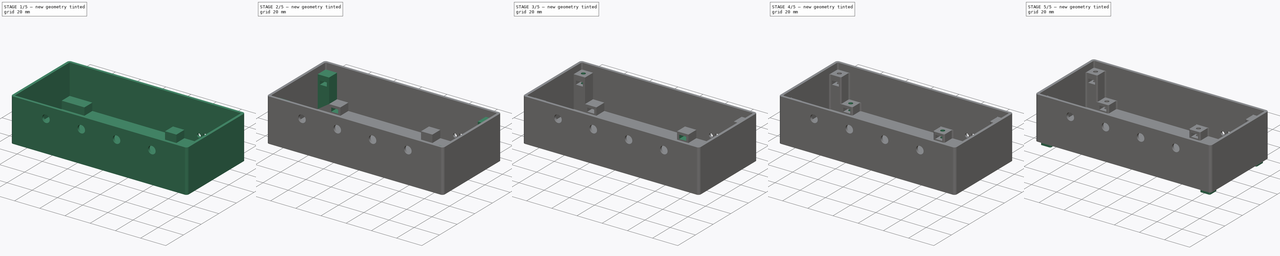
[diagram: build sequence overview — one tinted view per stage of 5, left to right]
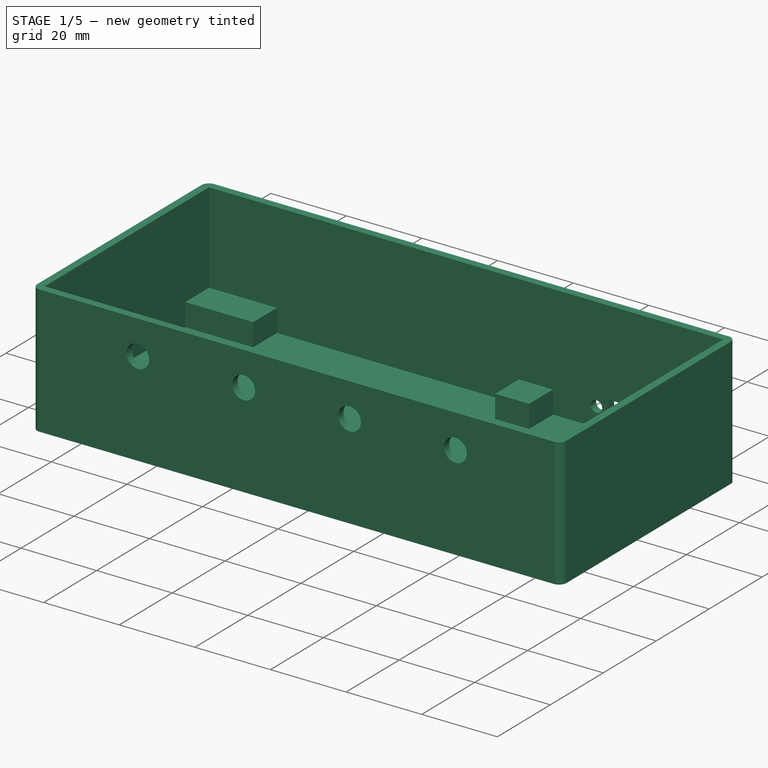
[diagram: stage 1 of 5 — iso view after this stage's code; geometry added in this stage tinted green]
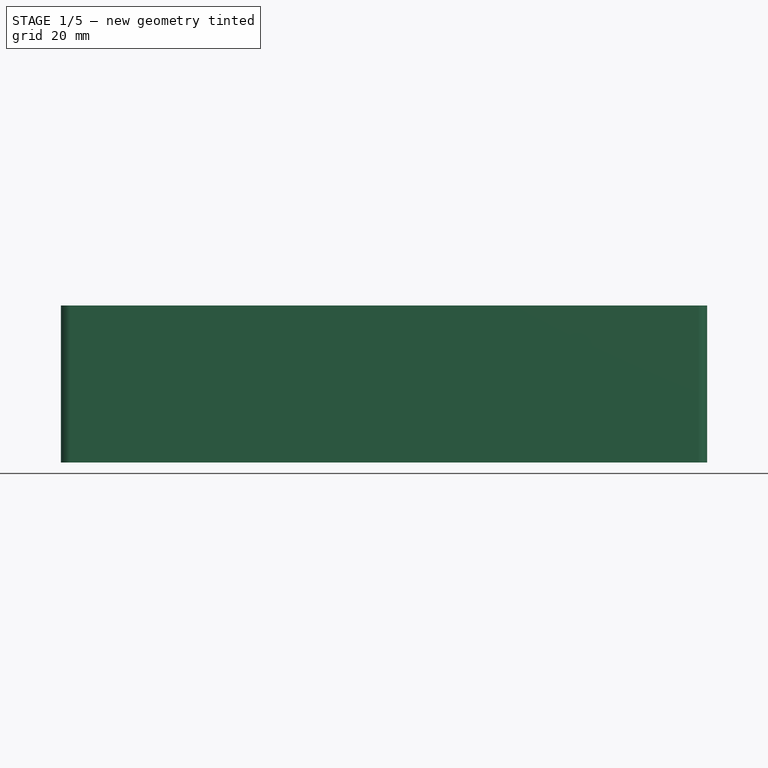
[diagram: stage 1 of 5 — front view after this stage's code; geometry added in this stage tinted green]
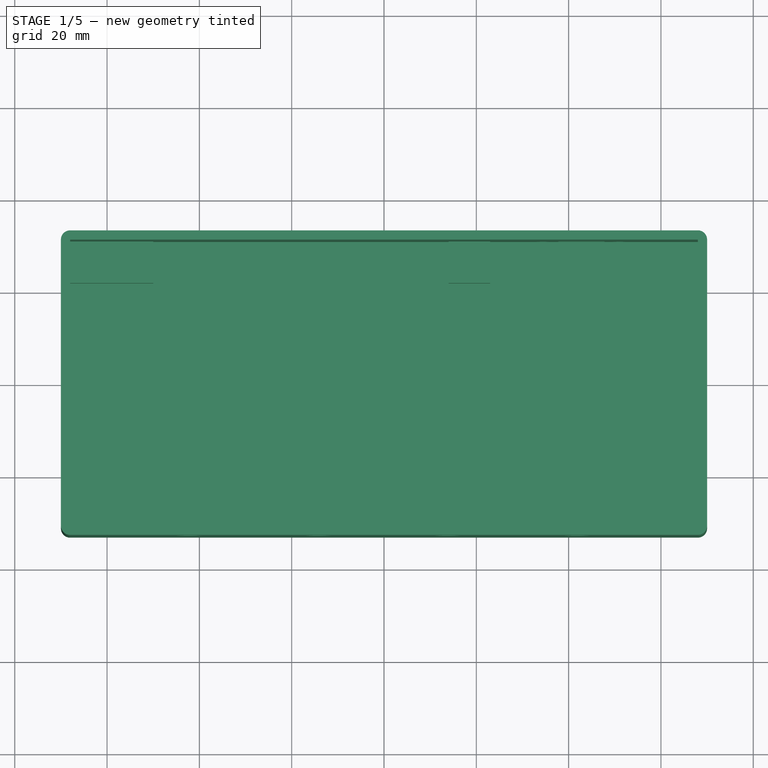
[diagram: stage 1 of 5 — top view after this stage's code; geometry added in this stage tinted green]
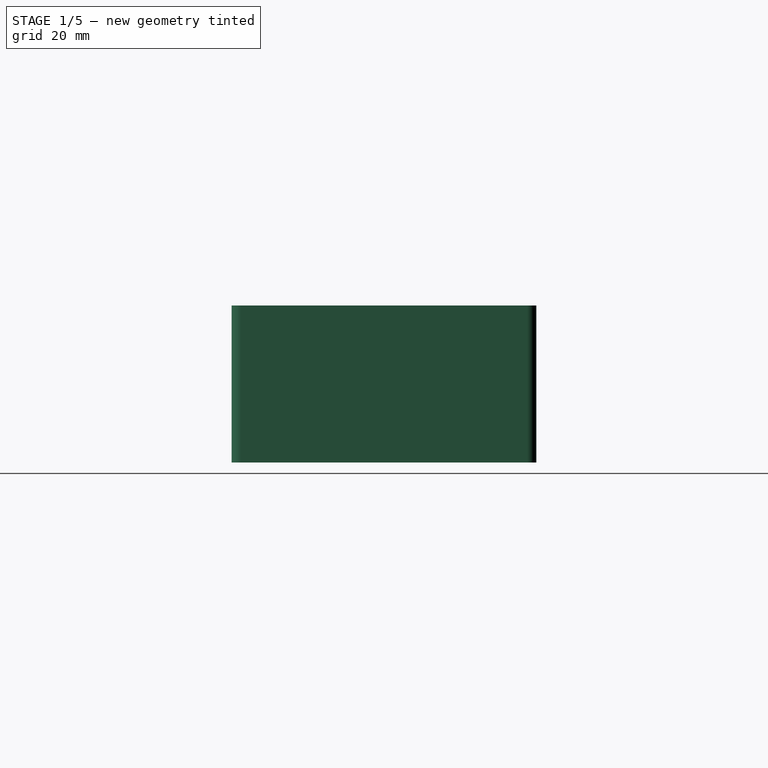
[diagram: stage 1 of 5 — right view after this stage's code; geometry added in this stage tinted green]
FCSTD DOCUMENT  (FreeCAD 1.0R39109 (Git))
Label: enclosure
License: All rights reserved
LicenseURL: https://en.wikipedia.org/wiki/All_rights_reserved
objects: Sketcher::SketchObject×28, PartDesign::Pocket×19, PartDesign::Pad×9, PartDesign::Fillet×6, PartDesign::Body×3, App::Part×2
note: 161 computed .brp shape members not serialized (recipe doc carries the construction recipe); baked Part::Feature solids carry a one-line shape summary decoded from their .brp

FEATURE [PartDesign::Body] Body  label="Perfboard"
  AllowCompound = false
  Group = -> [Sketch,Pad,Sketch001,Pocket]
  Origin = -> Origin
  Placement = pos=(-18,0,10) rot=(0,0,1;0rad)
  Tip = -> Pocket
FEATURE [Sketcher::SketchObject] Sketch002
  ArcFitTolerance = 1e-06
  AttachmentSupport = -> [XY_Plane002]
  FullyConstrained = true
  MakeInternals = false
  MapMode = 5
  sketch-geometry (5):
    g0: LineSegment StartX=-70 StartY=-33 StartZ=0 EndX=70 EndY=-33 EndZ=0
    g1: LineSegment StartX=70 StartY=-33 StartZ=0 EndX=70 EndY=33 EndZ=0
    g2: LineSegment StartX=70 StartY=33 StartZ=0 EndX=-70 EndY=33 EndZ=0
    g3: LineSegment StartX=-70 StartY=33 StartZ=0 EndX=-70 EndY=-33 EndZ=0
    g4: GeomPoint [constr] X=0 Y=0 Z=0
  constraints (12):
    c: Coincident(g0,g1)
    c: Coincident(g1,g2)
    c: Coincident(g2,g3)
    c: Coincident(g3,g0)
    c: Horizontal(g0)
    c: Horizontal(g2)
    c: Vertical(g1)
    c: Vertical(g3)
    c: Symmetric(g2,g0,g4)
    c: Distance(g1,g3) = 140
    c: Distance(g0,g2) = 66
    c: Coincident(g4,g-1)
FEATURE [PartDesign::Pad] Pad001
  Direction = (0,0,1)
  Length = 4
  Length2 = 10
  Profile = -> Sketch002
  ReferenceAxis = -> Sketch002 [N_Axis]
  Refine = true
  Suppressed = false
  Type = 0
FEATURE [Sketcher::SketchObject] Sketch003
  ArcFitTolerance = 1e-06
  AttachmentSupport = -> [Pad001]
  ExternalGeometry = -> [Pad001]
  FullyConstrained = true
  MakeInternals = false
  MapMode = 5
  Placement = pos=(0,0,4) rot=(0,0,1;0rad)
  sketch-geometry (12):
    g0: LineSegment StartX=-70 StartY=33 StartZ=0 EndX=-70 EndY=-33 EndZ=0
    g1: LineSegment StartX=-70 StartY=-33 StartZ=0 EndX=-68 EndY=-33 EndZ=0
    g2: LineSegment StartX=-68 StartY=33 StartZ=0 EndX=-70 EndY=33 EndZ=0
    g3: LineSegment StartX=70 StartY=33 StartZ=0 EndX=68 EndY=33 EndZ=0
    g4: LineSegment StartX=68 StartY=-33 StartZ=0 EndX=70 EndY=-33 EndZ=0
    g5: LineSegment StartX=70 StartY=-33 StartZ=0 EndX=70 EndY=33 EndZ=0
    g6: LineSegment StartX=68 StartY=-31 StartZ=0 EndX=-68 EndY=-31 EndZ=0
    g7: LineSegment StartX=-68 StartY=-33 StartZ=0 EndX=68 EndY=-33 EndZ=0
    g8: LineSegment StartX=-68 StartY=31 StartZ=0 EndX=68 EndY=31 EndZ=0
    g9: LineSegment StartX=-68 StartY=31 StartZ=0 EndX=-68 EndY=-31 EndZ=0
    g10: LineSegment StartX=68 StartY=31 StartZ=0 EndX=68 EndY=-31 EndZ=0
    g11: LineSegment StartX=68 StartY=33 StartZ=0 EndX=-68 EndY=33 EndZ=0
  constraints (34):
    c: Coincident(g0,g1)
    c: Coincident(g2,g0)
    c: Vertical(g0)
    c: Horizontal(g1)
    c: Horizontal(g2)
    c: Distance(g0,g2) = 2
    c: Distance(g1,g2) = 66
    c: Coincident(g0,g-3)
    c: Coincident(g4,g5)
    c: Coincident(g5,g3)
    c: Horizontal(g3)
    c: Horizontal(g4)
    c: Vertical(g5)
    c: Distance(g3,g5) = 2
    c: Distance(g3,g4) = 66
    c: Coincident(g3,g-4)
    c: Horizontal(g6)
    c: Distance(g6,g4) = 2
    c: Distance(g4,g4) = 2
    c: Coincident(g7,g1)
    c: Coincident(g7,g4)
    c: DistanceX(g0,g1) = 2
    c: Horizontal(g8)
    c: Coincident(g9,g8)
    c: Coincident(g9,g6)
    c: Vertical(g9)
    c: Coincident(g10,g8)
    c: Coincident(g10,g6)
    c: Vertical(g10)
    c: DistanceY(g8,g2) = 2
    c: DistanceX(g0,g8) = 2
    c: DistanceX(g8,g3) = 2
    c: Coincident(g11,g3)
    c: Coincident(g11,g2)
FEATURE [PartDesign::Pad] Pad002
  BaseFeature = -> Pad001
  Direction = (0,0,1)
  Length = 30
  Length2 = 10
  Profile = -> Sketch003
  ReferenceAxis = -> Sketch003 [N_Axis]
  Refine = true
  Suppressed = false
  Type = 0
FEATURE [Sketcher::SketchObject] Sketch004
  ArcFitTolerance = 1e-06
  AttachmentSupport = -> [Pad002]
  ExternalGeometry = -> [Pad002]
  FullyConstrained = true
  MakeInternals = false
  MapMode = 5
  Placement = pos=(0,-33,0) rot=(1,0,0;1.5708rad)
  sketch-geometry (13):
    g0: Circle CenterX=42 CenterY=25 CenterZ=0 NormalX=0 NormalY=0 NormalZ=1 AngleXU=0 Radius=3
    g1: Circle CenterX=-42 CenterY=25 CenterZ=0 NormalX=0 NormalY=0 NormalZ=1 AngleXU=0 Radius=3
    g2: Circle CenterX=-14 CenterY=25 CenterZ=0 NormalX=0 NormalY=0 NormalZ=1 AngleXU=0 Radius=3
    g3: Circle CenterX=14 CenterY=25 CenterZ=0 NormalX=0 NormalY=0 NormalZ=1 AngleXU=0 Radius=3
    g4: LineSegment [constr] StartX=-42 StartY=25 StartZ=0 EndX=-42 EndY=34 EndZ=0
    g5: LineSegment [constr] StartX=14 StartY=25 StartZ=0 EndX=14 EndY=34 EndZ=0
    g6: LineSegment [constr] StartX=42 StartY=25 StartZ=0 EndX=42 EndY=34 EndZ=0
    g7: LineSegment [constr] StartX=-42 StartY=25 StartZ=0 EndX=-14 EndY=25 EndZ=0
    g8: LineSegment [constr] StartX=-14 StartY=25 StartZ=0 EndX=14 EndY=25 EndZ=0
    g9: LineSegment [constr] StartX=14 StartY=25 StartZ=0 EndX=42 EndY=25 EndZ=0
    g10: LineSegment [constr] StartX=-14 StartY=25 StartZ=0 EndX=-14 EndY=34 EndZ=0
    g11: LineSegment [constr] StartX=42 StartY=25 StartZ=0 EndX=70 EndY=25 EndZ=0
    g12: LineSegment [constr] StartX=-42 StartY=25 StartZ=0 EndX=-70 EndY=25 EndZ=0
  constraints (36):
    c: Diameter(g0) = 6
    c: Diameter(g1) = 6
    c: Diameter(g2) = 6
    c: Diameter(g3) = 6
    c: Vertical(g4)
    c: Coincident(g1,g4)
    c: PointOnObject(g4,g-3)
    c: Vertical(g5)
    c: Coincident(g5,g3)
    c: PointOnObject(g5,g-3)
    c: Vertical(g6)
    c: Coincident(g6,g0)
    c: PointOnObject(g6,g-3)
    c: Coincident(g7,g1)
    c: Coincident(g7,g2)
    c: Coincident(g8,g2)
    c: Coincident(g8,g3)
    c: Coincident(g9,g3)
    c: Coincident(g9,g0)
    c: Vertical(g10)
    c: Coincident(g10,g2)
    c: PointOnObject(g10,g-3)
    c: Equal(g4,g10)
    c: Equal(g10,g5)
    c: Equal(g5,g6)
    c: Horizontal(g11)
    c: Coincident(g11,g0)
    c: PointOnObject(g11,g-5)
    c: Equal(g7,g8)
    c: Equal(g8,g9)
    c: Equal(g9,g11)
    c: DistanceY(g4,g4) = 9
    c: Horizontal(g12)
    c: Coincident(g12,g1)
    c: PointOnObject(g12,g-6)
    c: Equal(g12,g7)
FEATURE [PartDesign::Pocket] Pocket001
  BaseFeature = -> Pad002
  Direction = (0,1,-2e-16)
  Length = 5
  Length2 = 5
  Profile = -> Sketch004
  ReferenceAxis = -> Sketch004 [N_Axis]
  Refine = true
  Suppressed = false
  Type = 0
FEATURE [PartDesign::Fillet] Fillet
  Base = -> Pocket001 [Edge5,Edge6]
  BaseFeature = -> Pocket001
  Radius = 2
  Refine = true
  SupportTransform = false
  Suppressed = false
  UseAllEdges = false
FEATURE [PartDesign::Fillet] Fillet001
  Base = -> Fillet [Edge20,Edge18]
  BaseFeature = -> Fillet
  Radius = 2
  Refine = true
  SupportTransform = false
  Suppressed = false
  UseAllEdges = false
FEATURE [Sketcher::SketchObject] Sketch005
  ArcFitTolerance = 1e-06
  AttachmentSupport = -> [Fillet001]
  ExternalGeometry = -> [Fillet001]
  FullyConstrained = true
  MakeInternals = false
  MapMode = 5
  Placement = pos=(0,33,0) rot=(0,0.707107,0.707107;3.14159rad)
  sketch-geometry (8):
    g0: Circle CenterX=-34.5 CenterY=9 CenterZ=0 NormalX=0 NormalY=0 NormalZ=1 AngleXU=0 Radius=1.5
    g1: Circle CenterX=-51 CenterY=9 CenterZ=0 NormalX=0 NormalY=0 NormalZ=1 AngleXU=0 Radius=1.5
    g2: LineSegment StartX=-47.75 StartY=11.5 StartZ=0 EndX=-47.75 EndY=6.5 EndZ=0
    g3: LineSegment StartX=-47.75 StartY=6.5 StartZ=0 EndX=-37.75 EndY=6.5 EndZ=0
    g4: LineSegment StartX=-37.75 StartY=6.5 StartZ=0 EndX=-37.75 EndY=11.5 EndZ=0
    g5: LineSegment StartX=-37.75 StartY=11.5 StartZ=0 EndX=-47.75 EndY=11.5 EndZ=0
    g6: LineSegment [constr] StartX=-34.5 StartY=9 StartZ=0 EndX=-37.75 EndY=9 EndZ=0
    g7: LineSegment [constr] StartX=-51 StartY=9 StartZ=0 EndX=-47.75 EndY=9 EndZ=0
  constraints (22):
    c: Diameter(g0) = 3
    c: Diameter(g1) = 3
    c: Horizontal(g1,g0)
    c: DistanceX(g1,g0) = 16.5
    c: Coincident(g2,g3)
    c: Coincident(g3,g4)
    c: Coincident(g4,g5)
    c: Coincident(g5,g2)
    c: Vertical(g2)
    c: Vertical(g4)
    c: Horizontal(g3)
    c: Horizontal(g5)
    c: Distance(g2,g4) = 10
    c: Distance(g3,g5) = 5
    c: Horizontal(g6)
    c: Coincident(g6,g0)
    c: Symmetric(g4,g4,g6)
    c: Coincident(g7,g1)
    c: Symmetric(g2,g2,g7)
    c: Distance(g1,g-3) = 17
    c: Distance(g1,g-4) = 9
    c: Equal(g7,g6)
FEATURE [PartDesign::Pocket] Pocket002
  BaseFeature = -> Fillet001
  Direction = (0,-1,2e-16)
  Length = 5
  Length2 = 5
  Profile = -> Sketch005
  ReferenceAxis = -> Sketch005 [N_Axis]
  Refine = true
  Suppressed = false
  Type = 0
FEATURE [Sketcher::SketchObject] Sketch006
  ArcFitTolerance = 1e-06
  AttachmentSupport = -> [Pocket002]
  ExternalGeometry = -> [Pocket002]
  FullyConstrained = true
  MakeInternals = false
  MapMode = 5
  Placement = pos=(0,0,4) rot=(0,0,1;0rad)
  sketch-geometry (16):
    g0: LineSegment StartX=-68 StartY=31 StartZ=0 EndX=-68 EndY=22 EndZ=0
    g1: LineSegment StartX=-68 StartY=22 StartZ=0 EndX=-50 EndY=22 EndZ=0
    g2: LineSegment StartX=-50 StartY=22 StartZ=0 EndX=-50 EndY=31 EndZ=0
    g3: LineSegment StartX=-50 StartY=31 StartZ=0 EndX=-68 EndY=31 EndZ=0
    g4: LineSegment StartX=-68 StartY=-31 StartZ=0 EndX=-50 EndY=-31 EndZ=0
    g5: LineSegment StartX=-50 StartY=-31 StartZ=0 EndX=-50 EndY=-22 EndZ=0
    g6: LineSegment StartX=-50 StartY=-22 StartZ=0 EndX=-68 EndY=-22 EndZ=0
    g7: LineSegment StartX=-68 StartY=-22 StartZ=0 EndX=-68 EndY=-31 EndZ=0
    g8: LineSegment StartX=23 StartY=31 StartZ=0 EndX=14 EndY=31 EndZ=0
    g9: LineSegment StartX=14 StartY=31 StartZ=0 EndX=14 EndY=22 EndZ=0
    g10: LineSegment StartX=14 StartY=22 StartZ=0 EndX=23 EndY=22 EndZ=0
    g11: LineSegment StartX=23 StartY=22 StartZ=0 EndX=23 EndY=31 EndZ=0
    g12: LineSegment StartX=23 StartY=-31 StartZ=0 EndX=23 EndY=-22 EndZ=0
    g13: LineSegment StartX=23 StartY=-22 StartZ=0 EndX=14 EndY=-22 EndZ=0
    g14: LineSegment StartX=14 StartY=-22 StartZ=0 EndX=14 EndY=-31 EndZ=0
    g15: LineSegment StartX=14 StartY=-31 StartZ=0 EndX=23 EndY=-31 EndZ=0
  constraints (46):
    c: Coincident(g0,g1)
    c: Coincident(g1,g2)
    c: Coincident(g2,g3)
    c: Coincident(g3,g0)
    c: Vertical(g0)
    c: Vertical(g2)
    c: Horizontal(g1)
    c: Horizontal(g3)
    c: Distance(g0,g2) = 18
    c: Distance(g1,g3) = 9
    c: Coincident(g0,g-3)
    c: Coincident(g4,g5)
    c: Coincident(g5,g6)
    c: Coincident(g6,g7)
    c: Coincident(g7,g4)
    c: Horizontal(g4)
    c: Horizontal(g6)
    c: Vertical(g5)
    c: Vertical(g7)
    c: Distance(g5,g7) = 18
    c: Distance(g4,g6) = 9
    c: Coincident(g4,g-4)
    c: Coincident(g8,g9)
    c: Coincident(g9,g10)
    c: Coincident(g10,g11)
    c: Coincident(g11,g8)
    c: Horizontal(g8)
    c: Horizontal(g10)
    c: Vertical(g9)
    c: Vertical(g11)
    c: Distance(g9,g11) = 9
    c: Distance(g8,g10) = 9
    c: PointOnObject(g8,g-5)
    c: Coincident(g12,g13)
    c: Coincident(g13,g14)
    c: Coincident(g14,g15)
    c: Coincident(g15,g12)
    c: Vertical(g12)
    c: Vertical(g14)
    c: Horizontal(g13)
    c: Horizontal(g15)
    c: Distance(g12,g14) = 9
    c: Distance(g13,g15) = 9
    c: PointOnObject(g12,g-6)
    c: DistanceX(g2,g8) = 64
    c: DistanceX(g4,g14) = 64
FEATURE [PartDesign::Pad] Pad003
  BaseFeature = -> Pocket002
  Direction = (0,0,1)
  Length = 6
  Length2 = 10
  Profile = -> Sketch006
  ReferenceAxis = -> Sketch006 [N_Axis]
  Refine = true
  Suppressed = false
  Type = 0
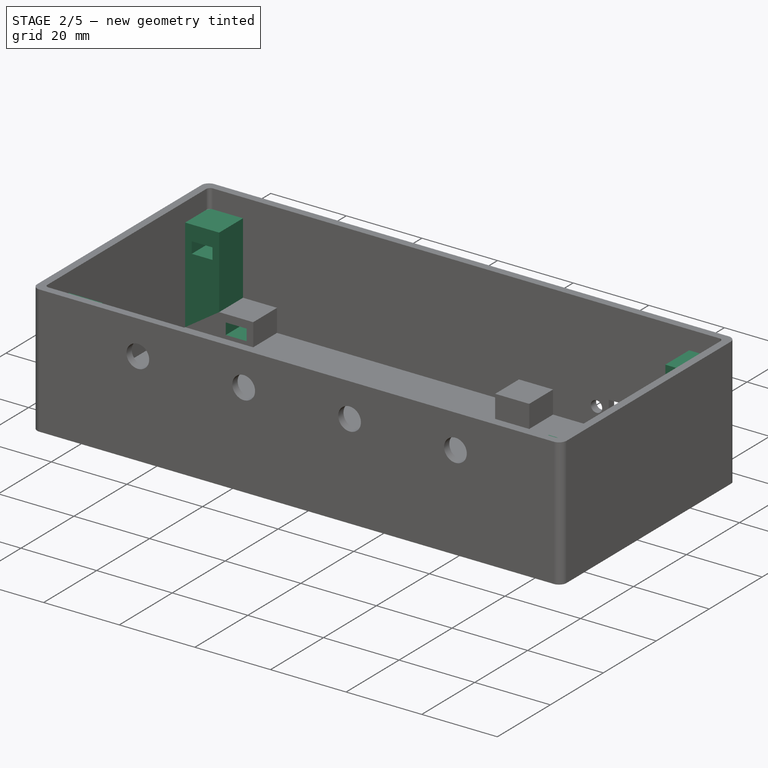
[diagram: stage 2 of 5 — iso view after this stage's code; geometry added in this stage tinted green]
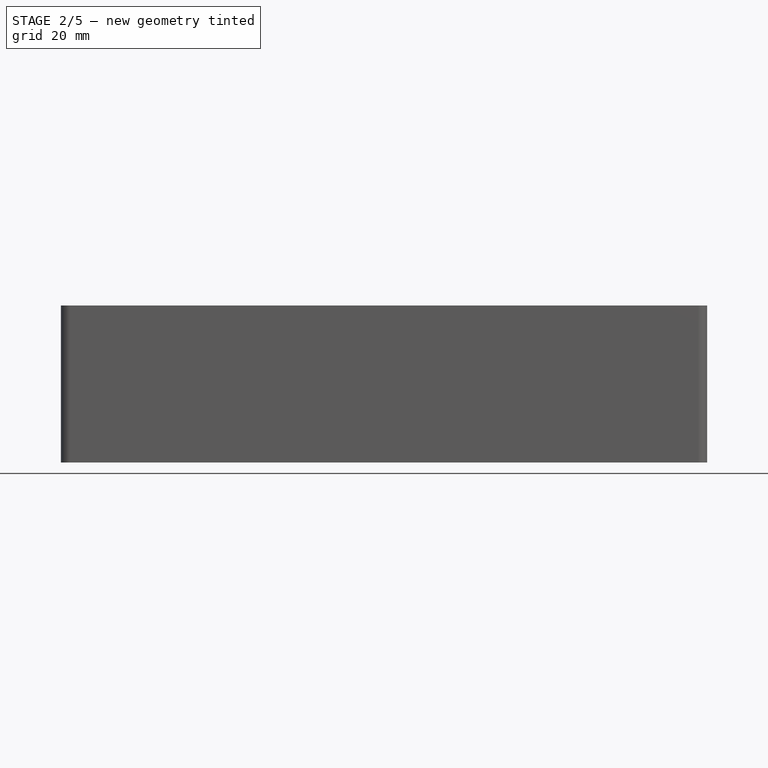
[diagram: stage 2 of 5 — front view after this stage's code; geometry added in this stage tinted green]
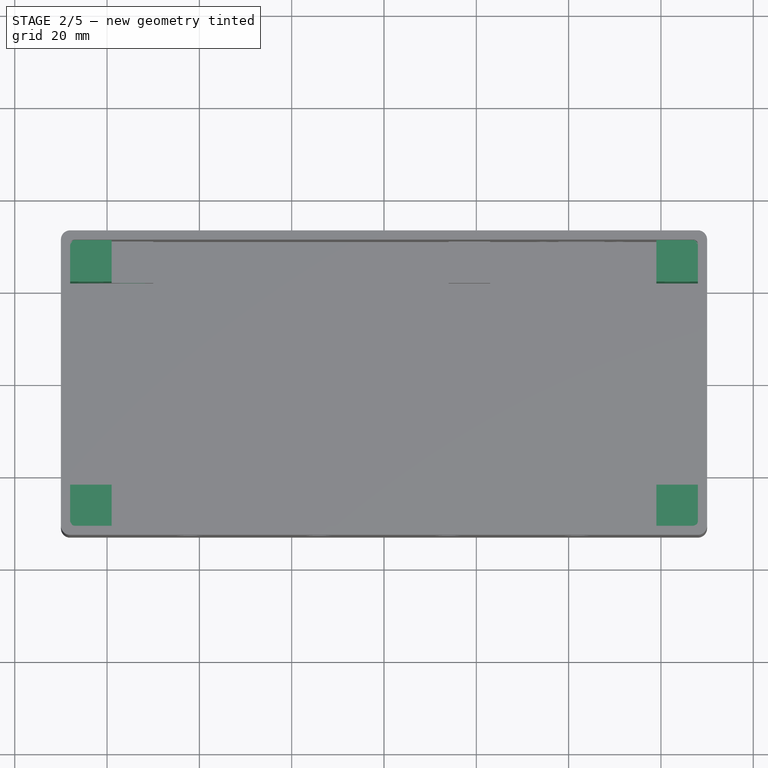
[diagram: stage 2 of 5 — top view after this stage's code; geometry added in this stage tinted green]
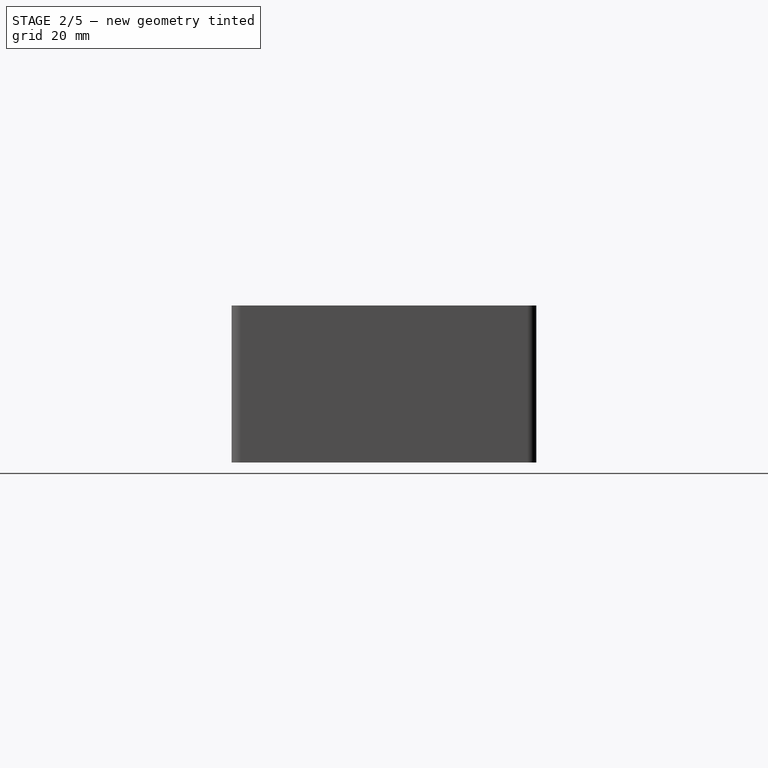
[diagram: stage 2 of 5 — right view after this stage's code; geometry added in this stage tinted green]
FEATURE [Sketcher::SketchObject] Sketch007
  ArcFitTolerance = 1e-06
  AttachmentSupport = -> [Pad003]
  ExternalGeometry = -> [Pad003]
  FullyConstrained = true
  MakeInternals = false
  MapMode = 5
  Placement = pos=(0,0,10) rot=(0,0,1;0rad)
  sketch-geometry (4):
    g0: LineSegment StartX=-68 StartY=31 StartZ=0 EndX=-68 EndY=22 EndZ=0
    g1: LineSegment StartX=-68 StartY=22 StartZ=0 EndX=-59 EndY=22 EndZ=0
    g2: LineSegment StartX=-59 StartY=22 StartZ=0 EndX=-59 EndY=31 EndZ=0
    g3: LineSegment StartX=-59 StartY=31 StartZ=0 EndX=-68 EndY=31 EndZ=0
  constraints (11):
    c: Coincident(g0,g1)
    c: Coincident(g1,g2)
    c: Coincident(g2,g3)
    c: Coincident(g3,g0)
    c: Vertical(g0)
    c: Vertical(g2)
    c: Horizontal(g1)
    c: Horizontal(g3)
    c: Distance(g0,g2) = 9
    c: Distance(g1,g3) = 9
    c: Coincident(g0,g-3)
FEATURE [PartDesign::Pad] Pad004
  BaseFeature = -> Pad003
  Direction = (0,0,1)
  Length = 19
  Length2 = 10
  Profile = -> Sketch007
  ReferenceAxis = -> Sketch007 [N_Axis]
  Refine = true
  Suppressed = false
  Type = 0
FEATURE [Sketcher::SketchObject] Sketch008
  ArcFitTolerance = 1e-06
  AttachmentSupport = -> [Pad004]
  ExternalGeometry = -> [Pad004]
  FullyConstrained = true
  MakeInternals = false
  MapMode = 5
  Placement = pos=(0,0,10) rot=(0,0,1;0rad)
  sketch-geometry (4):
    g0: LineSegment StartX=-68 StartY=-31 StartZ=0 EndX=-59 EndY=-31 EndZ=0
    g1: LineSegment StartX=-59 StartY=-31 StartZ=0 EndX=-59 EndY=-22 EndZ=0
    g2: LineSegment StartX=-59 StartY=-22 StartZ=0 EndX=-68 EndY=-22 EndZ=0
    g3: LineSegment StartX=-68 StartY=-22 StartZ=0 EndX=-68 EndY=-31 EndZ=0
  constraints (11):
    c: Coincident(g0,g1)
    c: Coincident(g1,g2)
    c: Coincident(g2,g3)
    c: Coincident(g3,g0)
    c: Horizontal(g0)
    c: Horizontal(g2)
    c: Vertical(g1)
    c: Vertical(g3)
    c: Distance(g1,g3) = 9
    c: Distance(g0,g2) = 9
    c: Coincident(g0,g-3)
FEATURE [PartDesign::Pad] Pad005
  BaseFeature = -> Pad004
  Direction = (0,0,1)
  Length = 19
  Length2 = 10
  Profile = -> Sketch008
  ReferenceAxis = -> Sketch008 [N_Axis]
  Refine = true
  Suppressed = false
  Type = 0
FEATURE [Sketcher::SketchObject] Sketch009
  ArcFitTolerance = 1e-06
  AttachmentSupport = -> [Pad005]
  ExternalGeometry = -> [Pad005]
  FullyConstrained = true
  MakeInternals = false
  MapMode = 5
  Placement = pos=(0,0,4) rot=(0,0,1;0rad)
  sketch-geometry (8):
    g0: LineSegment StartX=68 StartY=31 StartZ=0 EndX=59 EndY=31 EndZ=0
    g1: LineSegment StartX=59 StartY=31 StartZ=0 EndX=59 EndY=22 EndZ=0
    g2: LineSegment StartX=59 StartY=22 StartZ=0 EndX=68 EndY=22 EndZ=0
    g3: LineSegment StartX=68 StartY=22 StartZ=0 EndX=68 EndY=31 EndZ=0
    g4: LineSegment StartX=68 StartY=-31 StartZ=0 EndX=68 EndY=-22 EndZ=0
    g5: LineSegment StartX=68 StartY=-22 StartZ=0 EndX=59 EndY=-22 EndZ=0
    g6: LineSegment StartX=59 StartY=-22 StartZ=0 EndX=59 EndY=-31 EndZ=0
    g7: LineSegment StartX=59 StartY=-31 StartZ=0 EndX=68 EndY=-31 EndZ=0
  constraints (22):
    c: Coincident(g0,g1)
    c: Coincident(g1,g2)
    c: Coincident(g2,g3)
    c: Coincident(g3,g0)
    c: Horizontal(g0)
    c: Horizontal(g2)
    c: Vertical(g1)
    c: Vertical(g3)
    c: Distance(g1,g3) = 9
    c: Distance(g0,g2) = 9
    c: Coincident(g0,g-3)
    c: Coincident(g4,g5)
    c: Coincident(g5,g6)
    c: Coincident(g6,g7)
    c: Coincident(g7,g4)
    c: Vertical(g4)
    c: Vertical(g6)
    c: Horizontal(g5)
    c: Horizontal(g7)
    c: Distance(g4,g6) = 9
    c: Distance(g5,g7) = 9
    c: Coincident(g4,g-3)
FEATURE [PartDesign::Pad] Pad006
  BaseFeature = -> Pad005
  Direction = (0,0,1)
  Length = 25
  Length2 = 10
  Profile = -> Sketch009
  ReferenceAxis = -> Sketch009 [N_Axis]
  Refine = true
  Suppressed = false
  Type = 0
FEATURE [PartDesign::Body] Body002
  AllowCompound = false
  Group = -> [Sketch010,Pad007,Sketch011,Pad008,Sketch012,Pocket003,Sketch013,Pocket004,Fillet002,Fillet003]
  Origin = -> Origin004
  Placement = pos=(0,0,-24) rot=(0,0,1;0rad)
  Tip = -> Fillet003
FEATURE [App::Part] Part001  label="Enclosure Lid"
  Group = -> [Body002]
  Origin = -> Origin003
  Placement = pos=(0,0,56) rot=(0,0,1;0rad)
FEATURE [PartDesign::Fillet] Fillet004
  Base = -> Pad006 [Edge75,Edge85,Edge69,Edge68]
  BaseFeature = -> Pad006
  Radius = 1
  Refine = true
  SupportTransform = false
  Suppressed = false
  UseAllEdges = false
FEATURE [Sketcher::SketchObject] Sketch014
  ArcFitTolerance = 1e-06
  AttachmentSupport = -> [Fillet004]
  ExternalGeometry = -> [Fillet004]
  FullyConstrained = true
  MakeInternals = false
  MapMode = 5
  Placement = pos=(0,22,0) rot=(1,0,0;1.5708rad)
  sketch-geometry (12):
    g0: LineSegment StartX=-66.25 StartY=22 StartZ=0 EndX=-60.75 EndY=22 EndZ=0
    g1: LineSegment StartX=-60.75 StartY=22 StartZ=0 EndX=-60.75 EndY=25 EndZ=0
    g2: LineSegment StartX=-60.75 StartY=25 StartZ=0 EndX=-66.25 EndY=25 EndZ=0
    g3: LineSegment StartX=-66.25 StartY=25 StartZ=0 EndX=-66.25 EndY=22 EndZ=0
    g4: GeomPoint [constr] X=-63.5 Y=23.5 Z=0
    g5: LineSegment [constr] StartX=-63.5 StartY=23.5 StartZ=0 EndX=-59 EndY=23.5 EndZ=0
    g6: LineSegment [constr] StartX=-63.5 StartY=23.5 StartZ=0 EndX=-68 EndY=23.5 EndZ=0
    g7: LineSegment StartX=-57.25 StartY=5 StartZ=0 EndX=-51.75 EndY=5 EndZ=0
    g8: LineSegment StartX=-51.75 StartY=5 StartZ=0 EndX=-51.75 EndY=8 EndZ=0
    g9: LineSegment StartX=-51.75 StartY=8 StartZ=0 EndX=-57.25 EndY=8 EndZ=0
    g10: LineSegment StartX=-57.25 StartY=8 StartZ=0 EndX=-57.25 EndY=5 EndZ=0
    g11: GeomPoint [constr] X=-54.5 Y=6.5 Z=0
  constraints (32):
    c: Coincident(g0,g1)
    c: Coincident(g1,g2)
    c: Coincident(g2,g3)
    c: Coincident(g3,g0)
    c: Horizontal(g0)
    c: Horizontal(g2)
    c: Vertical(g1)
    c: Vertical(g3)
    c: Symmetric(g2,g0,g4)
    c: Distance(g1,g3) = 5.5
    c: Distance(g0,g2) = 3
    c: DistanceY(g1,g-4) = 4
    c: Horizontal(g5)
    c: Coincident(g5,g4)
    c: PointOnObject(g5,g-4)
    c: Horizontal(g6)
    c: Coincident(g6,g4)
    c: PointOnObject(g6,g-5)
    c: Equal(g6,g5)
    c: Coincident(g7,g8)
    c: Coincident(g8,g9)
    c: Coincident(g9,g10)
    c: Coincident(g10,g7)
    c: Horizontal(g7)
    c: Horizontal(g9)
    c: Vertical(g8)
    c: Vertical(g10)
    c: Symmetric(g9,g7,g11)
    c: Distance(g8,g10) = 5.5
    c: Distance(g7,g9) = 3
    c: DistanceX(g11,g-6) = 4.5
    c: DistanceY(g8,g-6) = 2
FEATURE [PartDesign::Pocket] Pocket005
  BaseFeature = -> Fillet004
  Direction = (0,1,-2e-16)
  Length = 7.5
  Length2 = 5
  Profile = -> Sketch014
  ReferenceAxis = -> Sketch014 [N_Axis]
  Refine = true
  Suppressed = false
  Type = 0
FEATURE [Sketcher::SketchObject] Sketch015
  ArcFitTolerance = 1e-06
  AttachmentSupport = -> [Pocket005]
  ExternalGeometry = -> [Pocket005]
  FullyConstrained = true
  MakeInternals = false
  MapMode = 5
  Placement = pos=(0,22,0) rot=(1,0,0;1.5708rad)
  sketch-geometry (7):
    g0: LineSegment StartX=60.75 StartY=22 StartZ=0 EndX=66.25 EndY=22 EndZ=0
    g1: LineSegment StartX=66.25 StartY=22 StartZ=0 EndX=66.25 EndY=25 EndZ=0
    g2: LineSegment StartX=66.25 StartY=25 StartZ=0 EndX=60.75 EndY=25 EndZ=0
    g3: LineSegment StartX=60.75 StartY=25 StartZ=0 EndX=60.75 EndY=22 EndZ=0
    g4: GeomPoint [constr] X=63.5 Y=23.5 Z=0
    g5: LineSegment [constr] StartX=63.5 StartY=23.5 StartZ=0 EndX=59 EndY=23.5 EndZ=0
    g6: LineSegment [constr] StartX=63.5 StartY=23.5 StartZ=0 EndX=68 EndY=23.5 EndZ=0
  constraints (19):
    c: Coincident(g0,g1)
    c: Coincident(g1,g2)
    c: Coincident(g2,g3)
    c: Coincident(g3,g0)
    c: Horizontal(g0)
    c: Horizontal(g2)
    c: Vertical(g1)
    c: Vertical(g3)
    c: Symmetric(g2,g0,g4)
    c: Distance(g1,g3) = 5.5
    c: Distance(g0,g2) = 3
    c: DistanceY(g1,g-4) = 4
    c: Horizontal(g5)
    c: Coincident(g5,g4)
    c: PointOnObject(g5,g-3)
    c: Horizontal(g6)
    c: Coincident(g6,g4)
    c: PointOnObject(g6,g-4)
    c: Equal(g5,g6)
FEATURE [PartDesign::Pocket] Pocket006
  BaseFeature = -> Pocket005
  Direction = (0,1,-2e-16)
  Length = 7.5
  Length2 = 5
  Profile = -> Sketch015
  ReferenceAxis = -> Sketch015 [N_Axis]
  Refine = true
  Suppressed = false
  Type = 0
FEATURE [Sketcher::SketchObject] Sketch016
  ArcFitTolerance = 1e-06
  AttachmentSupport = -> [Pocket006]
  ExternalGeometry = -> [Pocket006]
  FullyConstrained = true
  MakeInternals = false
  MapMode = 5
  Placement = pos=(0,-22,0) rot=(0,0.707107,0.707107;3.14159rad)
  sketch-geometry (12):
    g0: LineSegment StartX=60.75 StartY=22 StartZ=0 EndX=66.25 EndY=22 EndZ=0
    g1: LineSegment StartX=66.25 StartY=22 StartZ=0 EndX=66.25 EndY=25 EndZ=0
    g2: LineSegment StartX=66.25 StartY=25 StartZ=0 EndX=60.75 EndY=25 EndZ=0
    g3: LineSegment StartX=60.75 StartY=25 StartZ=0 EndX=60.75 EndY=22 EndZ=0
    g4: GeomPoint [constr] X=63.5 Y=23.5 Z=0
    g5: LineSegment [constr] StartX=63.5 StartY=23.5 StartZ=0 EndX=68 EndY=23.5 EndZ=0
    g6: LineSegment [constr] StartX=63.5 StartY=23.5 StartZ=0 EndX=59 EndY=23.5 EndZ=0
    g7: LineSegment StartX=51.75 StartY=5 StartZ=0 EndX=57.25 EndY=5 EndZ=0
    g8: LineSegment StartX=57.25 StartY=5 StartZ=0 EndX=57.25 EndY=8 EndZ=0
    g9: LineSegment StartX=57.25 StartY=8 StartZ=0 EndX=51.75 EndY=8 EndZ=0
    g10: LineSegment StartX=51.75 StartY=8 StartZ=0 EndX=51.75 EndY=5 EndZ=0
    g11: GeomPoint [constr] X=54.5 Y=6.5 Z=0
  constraints (32):
    c: Coincident(g0,g1)
    c: Coincident(g1,g2)
    c: Coincident(g2,g3)
    c: Coincident(g3,g0)
    c: Horizontal(g0)
    c: Horizontal(g2)
    c: Vertical(g1)
    c: Vertical(g3)
    c: Symmetric(g2,g0,g4)
    c: Distance(g1,g3) = 5.5
    c: Distance(g0,g2) = 3
    c: DistanceY(g1,g-4) = 4
    c: Horizontal(g5)
    c: Coincident(g5,g4)
    c: PointOnObject(g5,g-4)
    c: Horizontal(g6)
    c: Coincident(g6,g4)
    c: PointOnObject(g6,g-3)
    c: Equal(g5,g6)
    c: Coincident(g7,g8)
    c: Coincident(g8,g9)
    c: Coincident(g9,g10)
    c: Coincident(g10,g7)
    c: Horizontal(g7)
    c: Horizontal(g9)
    c: Vertical(g8)
    c: Vertical(g10)
    c: Symmetric(g9,g7,g11)
    c: Distance(g8,g10) = 5.5
    c: Distance(g7,g9) = 3
    c: DistanceY(g8,g-3) = 2
    c: DistanceX(g11,g-3) = 4.5
FEATURE [PartDesign::Pocket] Pocket007
  BaseFeature = -> Pocket006
  Direction = (0,-1,2e-16)
  Length = 7.4
  Length2 = 5
  Profile = -> Sketch016
  ReferenceAxis = -> Sketch016 [N_Axis]
  Refine = true
  Suppressed = false
  Type = 0
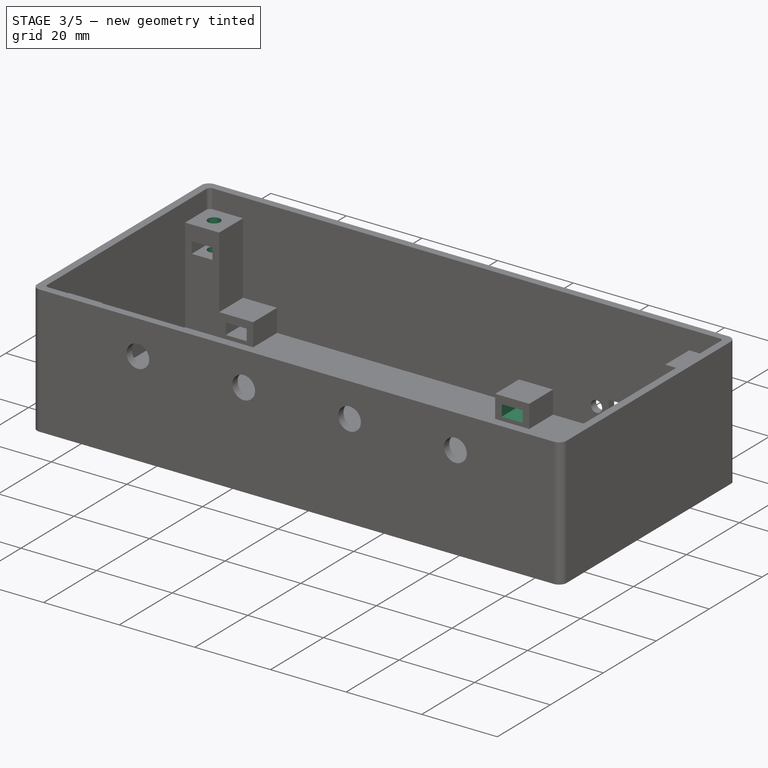
[diagram: stage 3 of 5 — iso view after this stage's code; geometry added in this stage tinted green]
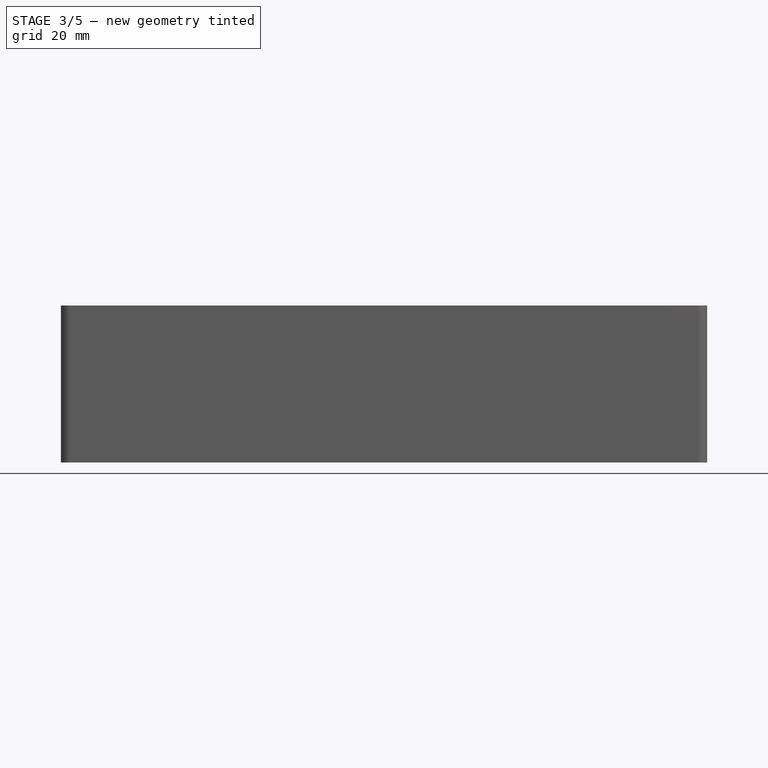
[diagram: stage 3 of 5 — front view after this stage's code; geometry added in this stage tinted green]
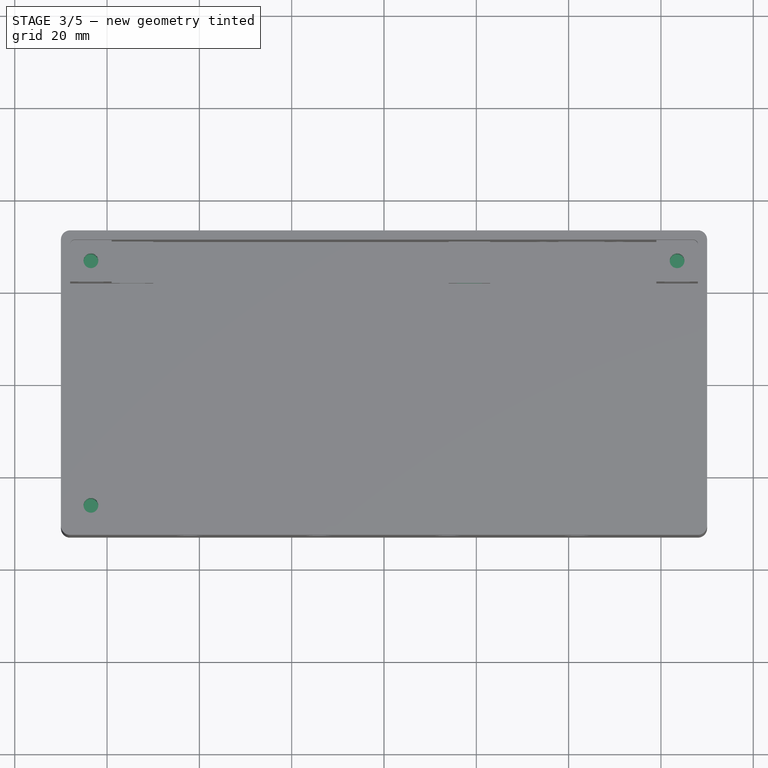
[diagram: stage 3 of 5 — top view after this stage's code; geometry added in this stage tinted green]
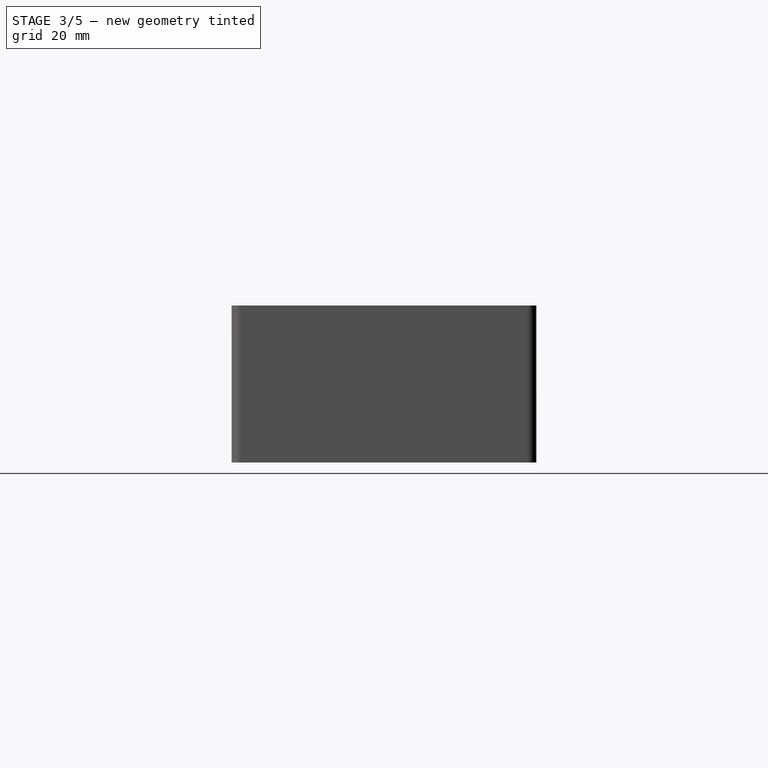
[diagram: stage 3 of 5 — right view after this stage's code; geometry added in this stage tinted green]
FEATURE [Sketcher::SketchObject] Sketch017
  ArcFitTolerance = 1e-06
  AttachmentSupport = -> [Pocket007]
  ExternalGeometry = -> [Pocket007]
  FullyConstrained = true
  MakeInternals = false
  MapMode = 5
  Placement = pos=(0,-22,0) rot=(0,0.707107,0.707107;3.14159rad)
  sketch-geometry (7):
    g0: LineSegment StartX=-66.25 StartY=22 StartZ=0 EndX=-60.75 EndY=22 EndZ=0
    g1: LineSegment StartX=-60.75 StartY=22 StartZ=0 EndX=-60.75 EndY=25 EndZ=0
    g2: LineSegment StartX=-60.75 StartY=25 StartZ=0 EndX=-66.25 EndY=25 EndZ=0
    g3: LineSegment StartX=-66.25 StartY=25 StartZ=0 EndX=-66.25 EndY=22 EndZ=0
    g4: GeomPoint [constr] X=-63.5 Y=23.5 Z=0
    g5: LineSegment [constr] StartX=-63.5 StartY=23.5 StartZ=0 EndX=-68 EndY=23.5 EndZ=0
    g6: LineSegment [constr] StartX=-63.5 StartY=23.5 StartZ=0 EndX=-59 EndY=23.5 EndZ=0
  constraints (19):
    c: Coincident(g0,g1)
    c: Coincident(g1,g2)
    c: Coincident(g2,g3)
    c: Coincident(g3,g0)
    c: Horizontal(g0)
    c: Horizontal(g2)
    c: Vertical(g1)
    c: Vertical(g3)
    c: Symmetric(g2,g0,g4)
    c: Distance(g1,g3) = 5.5
    c: Distance(g0,g2) = 3
    c: DistanceY(g1,g-3) = 4
    c: Horizontal(g5)
    c: Coincident(g5,g4)
    c: PointOnObject(g5,g-4)
    c: Horizontal(g6)
    c: Coincident(g6,g4)
    c: PointOnObject(g6,g-3)
    c: Equal(g6,g5)
FEATURE [PartDesign::Pocket] Pocket008
  BaseFeature = -> Pocket007
  Direction = (0,-1,2e-16)
  Length = 7.5
  Length2 = 5
  Profile = -> Sketch017
  ReferenceAxis = -> Sketch017 [N_Axis]
  Refine = true
  Suppressed = false
  Type = 0
FEATURE [Sketcher::SketchObject] Sketch018
  ArcFitTolerance = 1e-06
  AttachmentSupport = -> [Pocket008]
  ExternalGeometry = -> [Pocket008]
  FullyConstrained = true
  MakeInternals = false
  MapMode = 5
  Placement = pos=(0,22,0) rot=(1,0,0;1.5708rad)
  sketch-geometry (5):
    g0: LineSegment StartX=15.75 StartY=5 StartZ=0 EndX=21.25 EndY=5 EndZ=0
    g1: LineSegment StartX=21.25 StartY=5 StartZ=0 EndX=21.25 EndY=8 EndZ=0
    g2: LineSegment StartX=21.25 StartY=8 StartZ=0 EndX=15.75 EndY=8 EndZ=0
    g3: LineSegment StartX=15.75 StartY=8 StartZ=0 EndX=15.75 EndY=5 EndZ=0
    g4: GeomPoint [constr] X=18.5 Y=6.5 Z=0
  constraints (13):
    c: Coincident(g0,g1)
    c: Coincident(g1,g2)
    c: Coincident(g2,g3)
    c: Coincident(g3,g0)
    c: Horizontal(g0)
    c: Horizontal(g2)
    c: Vertical(g1)
    c: Vertical(g3)
    c: Symmetric(g2,g0,g4)
    c: Distance(g1,g3) = 5.5
    c: Distance(g0,g2) = 3
    c: DistanceY(g1,g-3) = 2
    c: DistanceX(g4,g-3) = 4.5
FEATURE [PartDesign::Pocket] Pocket009
  BaseFeature = -> Pocket008
  Direction = (0,1,-2e-16)
  Length = 7.5
  Length2 = 5
  Profile = -> Sketch018
  ReferenceAxis = -> Sketch018 [N_Axis]
  Refine = true
  Suppressed = false
  Type = 0
FEATURE [Sketcher::SketchObject] Sketch019
  ArcFitTolerance = 1e-06
  AttachmentSupport = -> [Pocket009]
  ExternalGeometry = -> [Pocket009]
  FullyConstrained = true
  MakeInternals = false
  MapMode = 5
  Placement = pos=(0,-22,0) rot=(0,0.707107,0.707107;3.14159rad)
  sketch-geometry (5):
    g0: LineSegment StartX=-21.25 StartY=5 StartZ=0 EndX=-15.75 EndY=5 EndZ=0
    g1: LineSegment StartX=-15.75 StartY=5 StartZ=0 EndX=-15.75 EndY=8 EndZ=0
    g2: LineSegment StartX=-15.75 StartY=8 StartZ=0 EndX=-21.25 EndY=8 EndZ=0
    g3: LineSegment StartX=-21.25 StartY=8 StartZ=0 EndX=-21.25 EndY=5 EndZ=0
    g4: GeomPoint [constr] X=-18.5 Y=6.5 Z=0
  constraints (13):
    c: Coincident(g0,g1)
    c: Coincident(g1,g2)
    c: Coincident(g2,g3)
    c: Coincident(g3,g0)
    c: Horizontal(g0)
    c: Horizontal(g2)
    c: Vertical(g1)
    c: Vertical(g3)
    c: Symmetric(g2,g0,g4)
    c: Distance(g1,g3) = 5.5
    c: Distance(g0,g2) = 3
    c: DistanceX(g4,g-3) = 4.5
    c: DistanceY(g1,g-3) = 2
FEATURE [PartDesign::Pocket] Pocket010
  BaseFeature = -> Pocket009
  Direction = (0,-1,2e-16)
  Length = 7.5
  Length2 = 5
  Profile = -> Sketch019
  ReferenceAxis = -> Sketch019 [N_Axis]
  Refine = true
  Suppressed = false
  Type = 0
FEATURE [Sketcher::SketchObject] Sketch020
  ArcFitTolerance = 1e-06
  AttachmentSupport = -> [Pocket010]
  ExternalGeometry = -> [Pocket010]
  FullyConstrained = true
  MakeInternals = false
  MapMode = 5
  Placement = pos=(0,0,29) rot=(0,0,1;0rad)
  sketch-geometry (1):
    g0: Circle CenterX=-63.5 CenterY=26.5 CenterZ=0 NormalX=0 NormalY=0 NormalZ=1 AngleXU=0 Radius=1.6
  constraints (3):
    c: Diameter(g0) = 3.2
    c: DistanceX(g0,g-4) = 4.5
    c: DistanceY(g0,g-4) = 4.5
FEATURE [PartDesign::Pocket] Pocket011
  BaseFeature = -> Pocket010
  Direction = (0,0,-1)
  Length = 12
  Length2 = 5
  Profile = -> Sketch020
  ReferenceAxis = -> Sketch020 [N_Axis]
  Refine = true
  Suppressed = false
  Type = 0
FEATURE [Sketcher::SketchObject] Sketch021
  ArcFitTolerance = 1e-06
  AttachmentSupport = -> [Pocket011]
  ExternalGeometry = -> [Pocket011]
  FullyConstrained = true
  MakeInternals = false
  MapMode = 5
  Placement = pos=(0,0,29) rot=(0,0,1;0rad)
  sketch-geometry (1):
    g0: Circle CenterX=-63.5 CenterY=-26.5 CenterZ=0 NormalX=0 NormalY=0 NormalZ=1 AngleXU=0 Radius=1.6
  constraints (3):
    c: Diameter(g0) = 3.2
    c: DistanceY(g0,g-3) = 4.5
    c: DistanceX(g0,g-3) = 4.5
FEATURE [PartDesign::Pocket] Pocket012
  BaseFeature = -> Pocket011
  Direction = (0,0,-1)
  Length = 12
  Length2 = 5
  Profile = -> Sketch021
  ReferenceAxis = -> Sketch021 [N_Axis]
  Refine = true
  Suppressed = false
  Type = 0
FEATURE [Sketcher::SketchObject] Sketch022
  ArcFitTolerance = 1e-06
  AttachmentSupport = -> [Pocket012]
  ExternalGeometry = -> [Pocket012]
  FullyConstrained = true
  MakeInternals = false
  MapMode = 5
  Placement = pos=(0,0,29) rot=(0,0,1;0rad)
  sketch-geometry (1):
    g0: Circle CenterX=63.5 CenterY=26.5 CenterZ=0 NormalX=0 NormalY=0 NormalZ=1 AngleXU=0 Radius=1.6
  constraints (3):
    c: Diameter(g0) = 3.2
    c: DistanceY(g0,g-3) = 4.5
    c: DistanceX(g-3,g0) = 4.5
FEATURE [PartDesign::Pocket] Pocket013
  BaseFeature = -> Pocket012
  Direction = (0,0,-1)
  Length = 12
  Length2 = 5
  Profile = -> Sketch022
  ReferenceAxis = -> Sketch022 [N_Axis]
  Refine = true
  Suppressed = false
  Type = 0
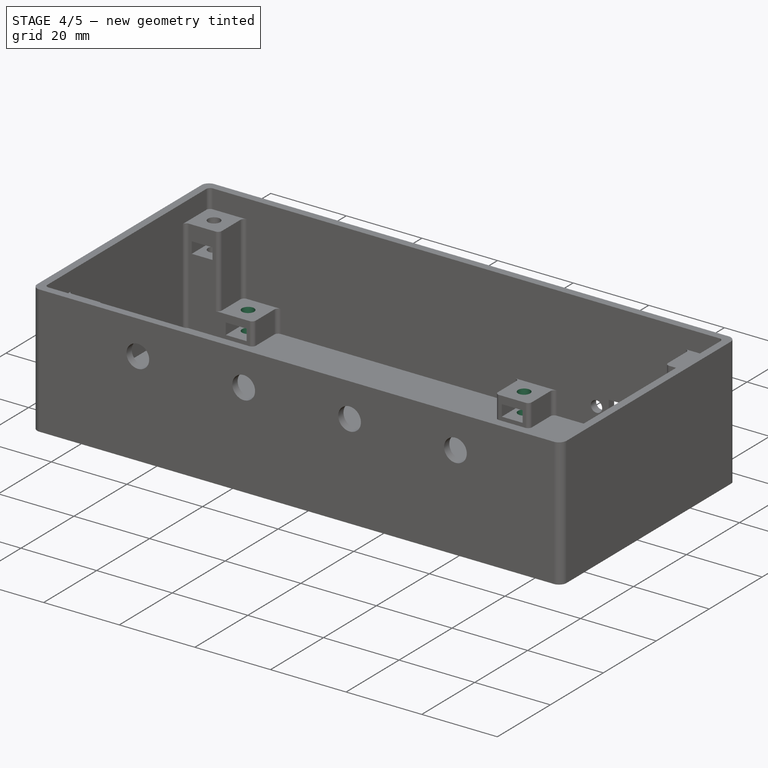
[diagram: stage 4 of 5 — iso view after this stage's code; geometry added in this stage tinted green]
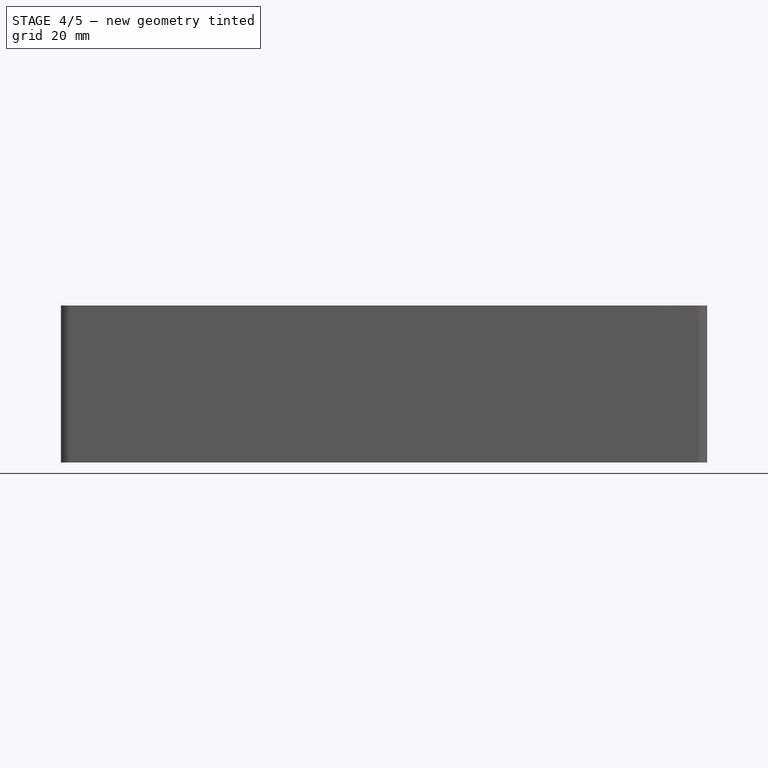
[diagram: stage 4 of 5 — front view after this stage's code; geometry added in this stage tinted green]
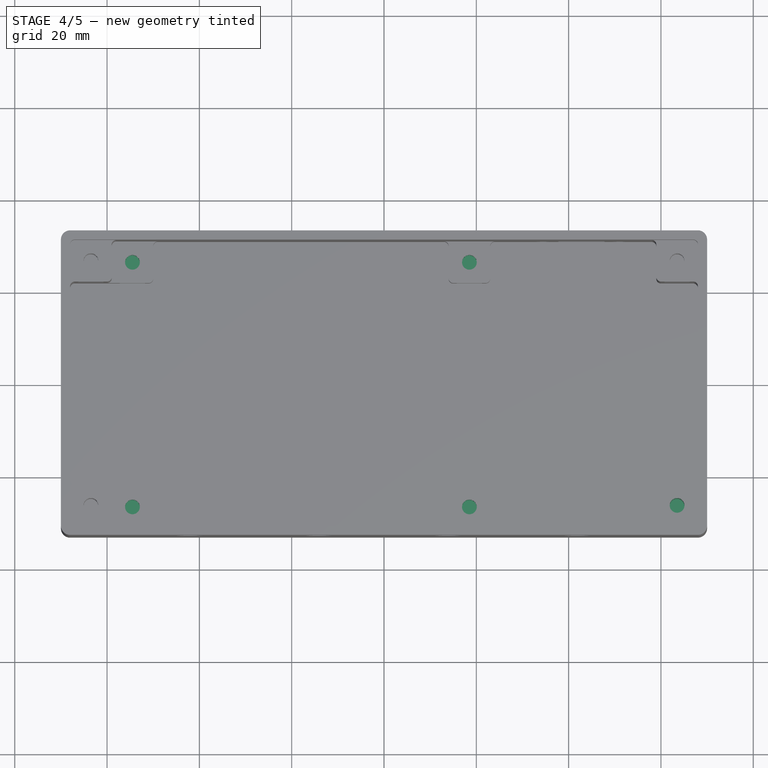
[diagram: stage 4 of 5 — top view after this stage's code; geometry added in this stage tinted green]
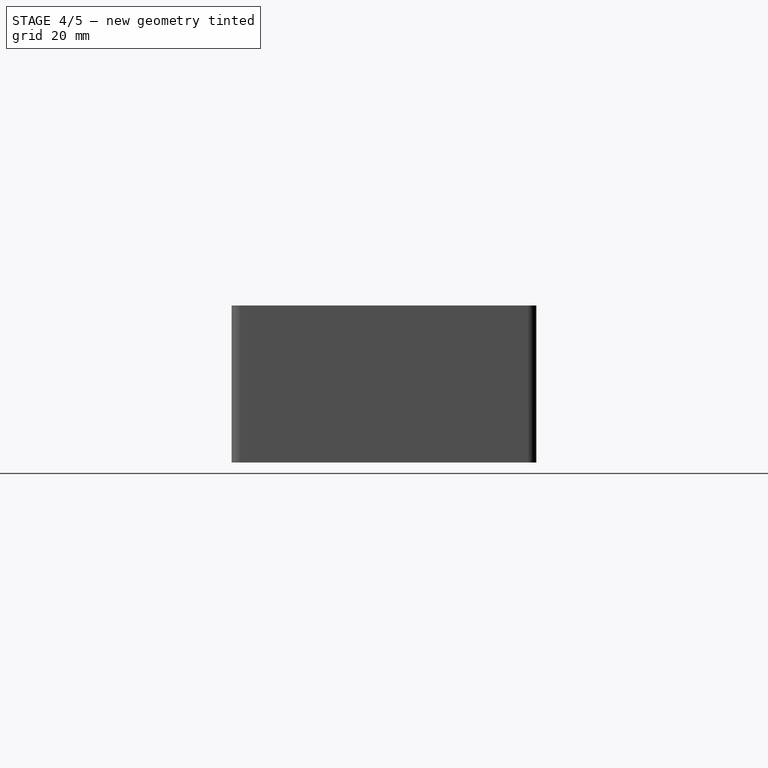
[diagram: stage 4 of 5 — right view after this stage's code; geometry added in this stage tinted green]
FEATURE [Sketcher::SketchObject] Sketch010
  ArcFitTolerance = 1e-06
  AttachmentSupport = -> [XY_Plane004]
  FullyConstrained = true
  MakeInternals = false
  MapMode = 5
  sketch-geometry (5):
    g0: LineSegment StartX=-67.5 StartY=-30.5 StartZ=0 EndX=67.5 EndY=-30.5 EndZ=0
    g1: LineSegment StartX=67.5 StartY=-30.5 StartZ=0 EndX=67.5 EndY=30.5 EndZ=0
    g2: LineSegment StartX=67.5 StartY=30.5 StartZ=0 EndX=-67.5 EndY=30.5 EndZ=0
    g3: LineSegment StartX=-67.5 StartY=30.5 StartZ=0 EndX=-67.5 EndY=-30.5 EndZ=0
    g4: GeomPoint [constr] X=0 Y=0 Z=0
  constraints (12):
    c: Coincident(g0,g1)
    c: Coincident(g1,g2)
    c: Coincident(g2,g3)
    c: Coincident(g3,g0)
    c: Horizontal(g0)
    c: Horizontal(g2)
    c: Vertical(g1)
    c: Vertical(g3)
    c: Symmetric(g2,g0,g4)
    c: Distance(g1,g3) = 135
    c: Distance(g0,g2) = 61
    c: Coincident(g4,g-1)
FEATURE [PartDesign::Pad] Pad007
  Direction = (0,0,1)
  Length = 2
  Length2 = 10
  Profile = -> Sketch010
  ReferenceAxis = -> Sketch010 [N_Axis]
  Refine = true
  Suppressed = false
  Type = 0
FEATURE [Sketcher::SketchObject] Sketch023
  ArcFitTolerance = 1e-06
  AttachmentSupport = -> [Pocket013]
  ExternalGeometry = -> [Pocket013]
  FullyConstrained = true
  MakeInternals = false
  MapMode = 5
  Placement = pos=(0,0,29) rot=(0,0,1;0rad)
  sketch-geometry (1):
    g0: Circle CenterX=63.5 CenterY=-26.5 CenterZ=0 NormalX=0 NormalY=0 NormalZ=1 AngleXU=0 Radius=1.6
  constraints (3):
    c: Diameter(g0) = 3.2
    c: DistanceY(g0,g-3) = 4.5
    c: DistanceX(g-3,g0) = 4.5
FEATURE [PartDesign::Pocket] Pocket014
  BaseFeature = -> Pocket013
  Direction = (0,0,-1)
  Length = 12
  Length2 = 5
  Profile = -> Sketch023
  ReferenceAxis = -> Sketch023 [N_Axis]
  Refine = true
  Suppressed = false
  Type = 0
FEATURE [Sketcher::SketchObject] Sketch024
  ArcFitTolerance = 1e-06
  AttachmentSupport = -> [Pocket014]
  ExternalGeometry = -> [Pocket014]
  FullyConstrained = true
  MakeInternals = false
  MapMode = 5
  Placement = pos=(0,0,10) rot=(0,0,1;0rad)
  sketch-geometry (1):
    g0: Circle CenterX=-54.5 CenterY=26.5 CenterZ=0 NormalX=0 NormalY=0 NormalZ=1 AngleXU=0 Radius=1.6
  constraints (3):
    c: Diameter(g0) = 3.2
    c: DistanceX(g0,g-3) = 4.5
    c: DistanceY(g-3,g0) = 4.5
FEATURE [PartDesign::Pocket] Pocket015
  BaseFeature = -> Pocket014
  Direction = (0,0,-1)
  Length = 8
  Length2 = 5
  Profile = -> Sketch024
  ReferenceAxis = -> Sketch024 [N_Axis]
  Refine = true
  Suppressed = false
  Type = 0
FEATURE [Sketcher::SketchObject] Sketch025
  ArcFitTolerance = 1e-06
  AttachmentSupport = -> [Pocket015]
  ExternalGeometry = -> [Pocket015]
  FullyConstrained = true
  MakeInternals = false
  MapMode = 5
  Placement = pos=(0,0,10) rot=(0,0,1;0rad)
  sketch-geometry (1):
    g0: Circle CenterX=18.5 CenterY=26.5 CenterZ=0 NormalX=0 NormalY=0 NormalZ=1 AngleXU=0 Radius=1.6
  constraints (3):
    c: Diameter(g0) = 3.2
    c: DistanceY(g0,g-3) = 4.5
    c: DistanceX(g0,g-3) = 4.5
FEATURE [PartDesign::Pocket] Pocket016
  BaseFeature = -> Pocket015
  Direction = (0,0,-1)
  Length = 8
  Length2 = 5
  Profile = -> Sketch025
  ReferenceAxis = -> Sketch025 [N_Axis]
  Refine = true
  Suppressed = false
  Type = 0
FEATURE [Sketcher::SketchObject] Sketch026
  ArcFitTolerance = 1e-06
  AttachmentSupport = -> [Pocket016]
  ExternalGeometry = -> [Pocket016]
  FullyConstrained = true
  MakeInternals = false
  MapMode = 5
  Placement = pos=(0,0,10) rot=(0,0,1;0rad)
  sketch-geometry (1):
    g0: Circle CenterX=18.5 CenterY=-26.5 CenterZ=0 NormalX=0 NormalY=0 NormalZ=1 AngleXU=0 Radius=1.6
  constraints (3):
    c: Diameter(g0) = 3.2
    c: DistanceY(g0,g-3) = 4.5
    c: DistanceX(g0,g-3) = 4.5
FEATURE [PartDesign::Pocket] Pocket017
  BaseFeature = -> Pocket016
  Direction = (0,0,-1)
  Length = 8
  Length2 = 5
  Profile = -> Sketch026
  ReferenceAxis = -> Sketch026 [N_Axis]
  Refine = true
  Suppressed = false
  Type = 0
FEATURE [Sketcher::SketchObject] Sketch027
  ArcFitTolerance = 1e-06
  AttachmentSupport = -> [Pocket017]
  ExternalGeometry = -> [Pocket017]
  FullyConstrained = true
  MakeInternals = false
  MapMode = 5
  Placement = pos=(0,0,10) rot=(0,0,1;0rad)
  sketch-geometry (1):
    g0: Circle CenterX=-54.5 CenterY=-26.5 CenterZ=0 NormalX=0 NormalY=0 NormalZ=1 AngleXU=0 Radius=1.6
  constraints (3):
    c: Diameter(g0) = 3.2
    c: DistanceY(g0,g-3) = 4.5
    c: DistanceX(g0,g-3) = 4.5
FEATURE [PartDesign::Pocket] Pocket018
  BaseFeature = -> Pocket017
  Direction = (0,0,-1)
  Length = 8
  Length2 = 5
  Profile = -> Sketch027
  ReferenceAxis = -> Sketch027 [N_Axis]
  Refine = true
  Suppressed = false
  Type = 0
FEATURE [PartDesign::Fillet] Fillet005
  Base = -> Pocket018 [Edge40,Edge137,Edge55,Edge57,Edge168,Edge174,Edge61,Edge48,Edge156,Edge60,Edge155,Edge64,Edge42,Edge123,Edge25,Edge29,Edge129,Edge124,Edge26,Edge22,Edge105,Edge100,Edge45,Edge19]
  BaseFeature = -> Pocket018
  Radius = 1
  Refine = true
  SupportTransform = false
  Suppressed = false
  UseAllEdges = false
FEATURE [PartDesign::Body] Body001  label="Body"
  AllowCompound = false
  Group = -> [Sketch002,Pad001,Sketch003,Pad002,Sketch004,Pocket001,Fillet,Fillet001,Sketch005,Pocket002,Sketch006,Pad003,Sketch007,Pad004,Sketch008,Pad005,Sketch009,Pad006,Fillet004,Sketch014,Pocket005,Sketch015,Pocket006,Sketch016,Pocket007,Sketch017,Pocket008,Sketch018,Pocket009,Sketch019,Pocket010,Sketch020,Pocket011,Sketch021,Pocket012,Sketch022,Pocket013,Sketch023,Pocket014,Sketch024,Pocket015,Sketch025,+6 more]
  Origin = -> Origin002
  Tip = -> Fillet005
FEATURE [App::Part] Part  label="Enclosure Bottom"
  Group = -> [Body001,Body]
  Origin = -> Origin001
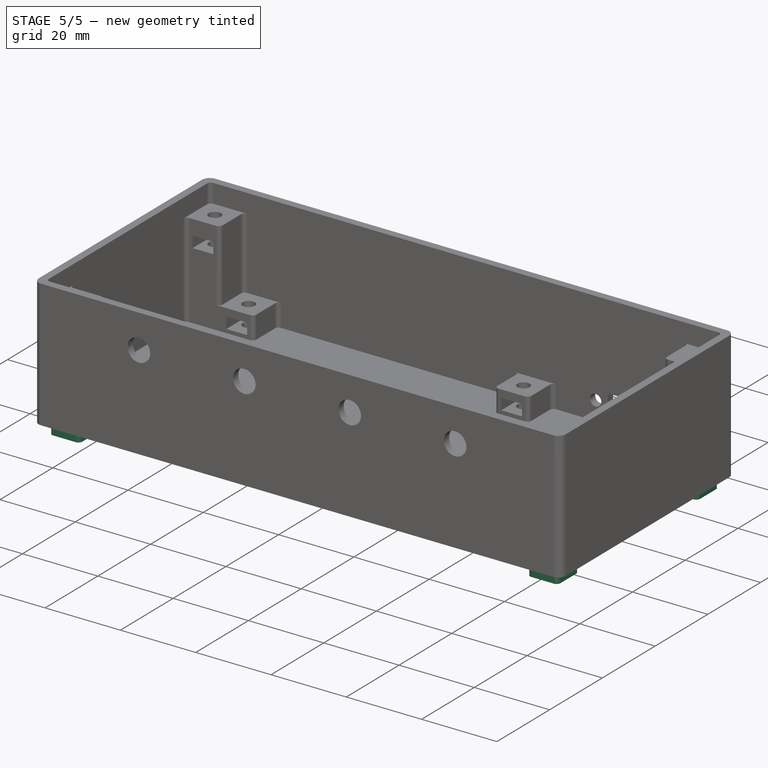
[diagram: stage 5 of 5 — iso view after this stage's code; geometry added in this stage tinted green]
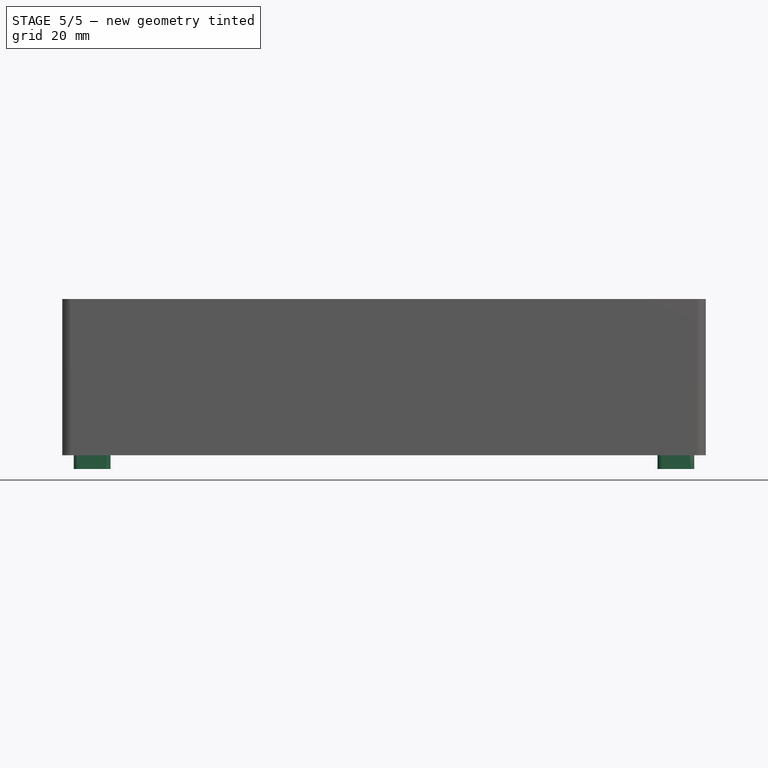
[diagram: stage 5 of 5 — front view after this stage's code; geometry added in this stage tinted green]
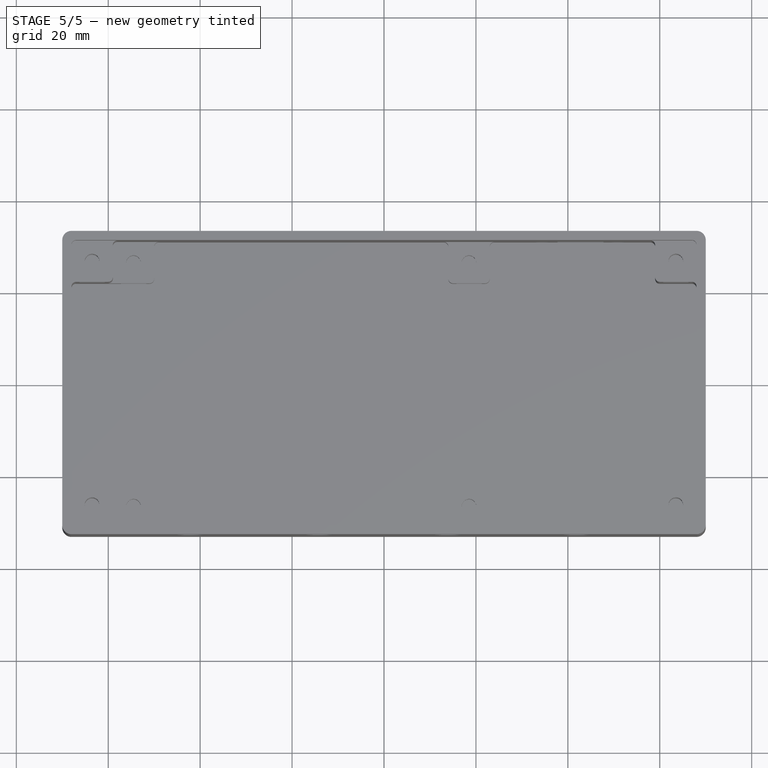
[diagram: stage 5 of 5 — top view after this stage's code; geometry added in this stage tinted green]
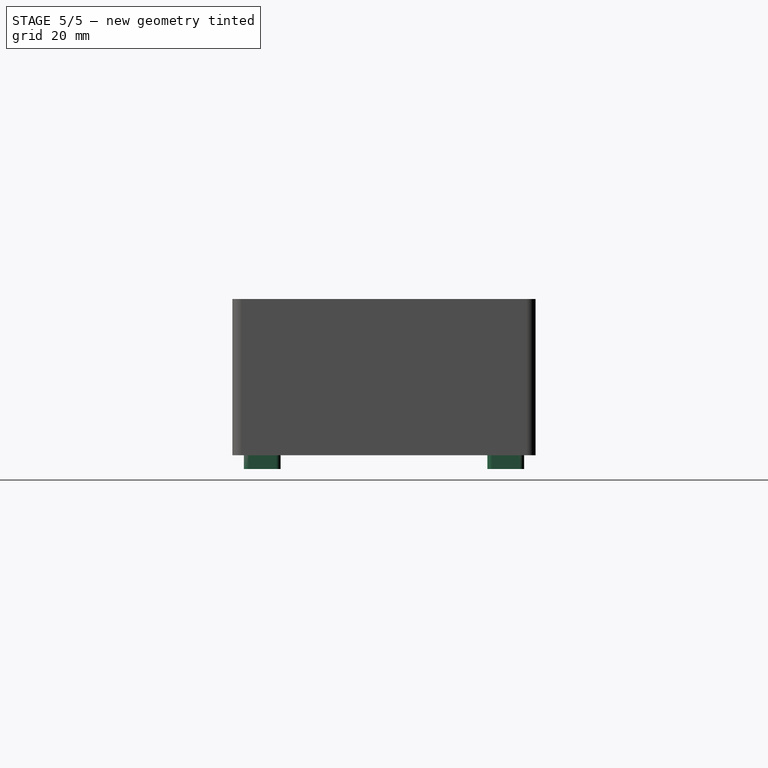
[diagram: stage 5 of 5 — right view after this stage's code; geometry added in this stage tinted green]
FEATURE [Sketcher::SketchObject] Sketch
  ArcFitTolerance = 1e-06
  AttachmentSupport = -> [XY_Plane]
  FullyConstrained = true
  MakeInternals = false
  MapMode = 5
  sketch-geometry (5):
    g0: LineSegment StartX=-39 StartY=-29 StartZ=0 EndX=39 EndY=-29 EndZ=0
    g1: LineSegment StartX=39 StartY=-29 StartZ=0 EndX=39 EndY=29 EndZ=0
    g2: LineSegment StartX=39 StartY=29 StartZ=0 EndX=-39 EndY=29 EndZ=0
    g3: LineSegment StartX=-39 StartY=29 StartZ=0 EndX=-39 EndY=-29 EndZ=0
    g4: GeomPoint [constr] X=0 Y=0 Z=0
  constraints (12):
    c: Coincident(g0,g1)
    c: Coincident(g1,g2)
    c: Coincident(g2,g3)
    c: Coincident(g3,g0)
    c: Horizontal(g0)
    c: Horizontal(g2)
    c: Vertical(g1)
    c: Vertical(g3)
    c: Symmetric(g2,g0,g4)
    c: Distance(g1,g3) = 78
    c: Distance(g0,g2) = 58
    c: Coincident(g4,g-1)
FEATURE [PartDesign::Pad] Pad
  Direction = (0,0,1)
  Length = 2
  Length2 = 10
  Profile = -> Sketch
  ReferenceAxis = -> Sketch [N_Axis]
  Refine = true
  Suppressed = false
  Type = 0
FEATURE [Sketcher::SketchObject] Sketch001
  ArcFitTolerance = 1e-06
  AttachmentSupport = -> [Pad]
  ExternalGeometry = -> [Pad]
  FullyConstrained = true
  MakeInternals = false
  MapMode = 5
  Placement = pos=(0,0,2) rot=(0,0,1;0rad)
  sketch-geometry (4):
    g0: Circle CenterX=-36.5 CenterY=26.5 CenterZ=0 NormalX=0 NormalY=0 NormalZ=1 AngleXU=0 Radius=1.5
    g1: Circle CenterX=36.5 CenterY=26.5 CenterZ=0 NormalX=0 NormalY=0 NormalZ=1 AngleXU=0 Radius=1.5
    g2: Circle CenterX=36.5 CenterY=-26.5 CenterZ=0 NormalX=0 NormalY=0 NormalZ=1 AngleXU=0 Radius=1.5
    g3: Circle CenterX=-36.5 CenterY=-26.5 CenterZ=0 NormalX=0 NormalY=0 NormalZ=1 AngleXU=0 Radius=1.5
  constraints (12):
    c: Diameter(g0) = 3
    c: Distance(g0,g-3) = 2.5
    c: Distance(g0,g-4) = 2.5
    c: Diameter(g1) = 3
    c: Distance(g1,g-3) = 2.5
    c: Distance(g1,g-5) = 2.5
    c: Diameter(g2) = 3
    c: Distance(g2,g-6) = 2.5
    c: Distance(g2,g-5) = 2.5
    c: Diameter(g3) = 3
    c: Distance(g3,g-6) = 2.5
    c: Distance(g3,g-4) = 2.5
FEATURE [PartDesign::Pocket] Pocket
  BaseFeature = -> Pad
  Direction = (0,0,-1)
  Length = 5
  Length2 = 5
  Profile = -> Sketch001 [Edge4,Edge1,Edge2,Edge3]
  ReferenceAxis = -> Sketch001 [N_Axis]
  Refine = true
  Suppressed = false
  Type = 0
FEATURE [Sketcher::SketchObject] Sketch011
  ArcFitTolerance = 1e-06
  AttachmentSupport = -> [Pad007]
  ExternalGeometry = -> [Pad007]
  FullyConstrained = true
  MakeInternals = false
  MapMode = 5
  Placement = pos=(0,0,0) rot=(1,0,0;3.14159rad)
  sketch-geometry (16):
    g0: LineSegment StartX=-67.5 StartY=30.5 StartZ=0 EndX=-67.5 EndY=22.5 EndZ=0
    g1: LineSegment StartX=-67.5 StartY=22.5 StartZ=0 EndX=-59.5 EndY=22.5 EndZ=0
    g2: LineSegment StartX=-59.5 StartY=22.5 StartZ=0 EndX=-59.5 EndY=30.5 EndZ=0
    g3: LineSegment StartX=-59.5 StartY=30.5 StartZ=0 EndX=-67.5 EndY=30.5 EndZ=0
    g4: LineSegment StartX=-67.5 StartY=-30.5 StartZ=0 EndX=-59.5 EndY=-30.5 EndZ=0
    g5: LineSegment StartX=-59.5 StartY=-30.5 StartZ=0 EndX=-59.5 EndY=-22.5 EndZ=0
    g6: LineSegment StartX=-59.5 StartY=-22.5 StartZ=0 EndX=-67.5 EndY=-22.5 EndZ=0
    g7: LineSegment StartX=-67.5 StartY=-22.5 StartZ=0 EndX=-67.5 EndY=-30.5 EndZ=0
    g8: LineSegment StartX=67.5 StartY=-30.5 StartZ=0 EndX=67.5 EndY=-22.5 EndZ=0
    g9: LineSegment StartX=67.5 StartY=-22.5 StartZ=0 EndX=59.5 EndY=-22.5 EndZ=0
    g10: LineSegment StartX=59.5 StartY=-22.5 StartZ=0 EndX=59.5 EndY=-30.5 EndZ=0
    g11: LineSegment StartX=59.5 StartY=-30.5 StartZ=0 EndX=67.5 EndY=-30.5 EndZ=0
    g12: LineSegment StartX=67.5 StartY=30.5 StartZ=0 EndX=59.5 EndY=30.5 EndZ=0
    g13: LineSegment StartX=59.5 StartY=30.5 StartZ=0 EndX=59.5 EndY=22.5 EndZ=0
    g14: LineSegment StartX=59.5 StartY=22.5 StartZ=0 EndX=67.5 EndY=22.5 EndZ=0
    g15: LineSegment StartX=67.5 StartY=22.5 StartZ=0 EndX=67.5 EndY=30.5 EndZ=0
  constraints (44):
    c: Coincident(g0,g1)
    c: Coincident(g1,g2)
    c: Coincident(g2,g3)
    c: Coincident(g3,g0)
    c: Vertical(g0)
    c: Vertical(g2)
    c: Horizontal(g1)
    c: Horizontal(g3)
    c: Distance(g0,g2) = 8
    c: Distance(g1,g3) = 8
    c: Coincident(g0,g-3)
    c: Coincident(g4,g5)
    c: Coincident(g5,g6)
    c: Coincident(g6,g7)
    c: Coincident(g7,g4)
    c: Horizontal(g4)
    c: Horizontal(g6)
    c: Vertical(g5)
    c: Vertical(g7)
    c: Distance(g5,g7) = 8
    c: Distance(g4,g6) = 8
    c: Coincident(g4,g-4)
    c: Coincident(g8,g9)
    c: Coincident(g9,g10)
    c: Coincident(g10,g11)
    c: Coincident(g11,g8)
    c: Vertical(g8)
    c: Vertical(g10)
    c: Horizontal(g9)
    c: Horizontal(g11)
    c: Distance(g8,g10) = 8
    c: Distance(g9,g11) = 8
    c: Coincident(g8,g-4)
    c: Coincident(g12,g13)
    c: Coincident(g13,g14)
    c: Coincident(g14,g15)
    c: Coincident(g15,g12)
    c: Horizontal(g12)
    c: Horizontal(g14)
    c: Vertical(g13)
    c: Vertical(g15)
    c: Distance(g13,g15) = 8
    c: Distance(g12,g14) = 8
    c: Coincident(g12,g-3)
FEATURE [PartDesign::Pad] Pad008
  BaseFeature = -> Pad007
  Direction = (0,0,-1)
  Length = 3
  Length2 = 10
  Profile = -> Sketch011
  ReferenceAxis = -> Sketch011 [N_Axis]
  Refine = true
  Suppressed = false
  Type = 0
FEATURE [Sketcher::SketchObject] Sketch012
  ArcFitTolerance = 1e-06
  AttachmentSupport = -> [Pad008]
  ExternalGeometry = -> [Pad008]
  FullyConstrained = true
  MakeInternals = false
  MapMode = 5
  Placement = pos=(0,0,2) rot=(0,0,1;0rad)
  sketch-geometry (4):
    g0: Circle CenterX=-63.5 CenterY=26.5 CenterZ=0 NormalX=0 NormalY=0 NormalZ=1 AngleXU=0 Radius=1.5
    g1: Circle CenterX=-63.5 CenterY=-26.5 CenterZ=0 NormalX=0 NormalY=0 NormalZ=1 AngleXU=0 Radius=1.5
    g2: Circle CenterX=63.5 CenterY=26.5 CenterZ=0 NormalX=0 NormalY=0 NormalZ=1 AngleXU=0 Radius=1.5
    g3: Circle CenterX=63.5 CenterY=-26.5 CenterZ=0 NormalX=0 NormalY=0 NormalZ=1 AngleXU=0 Radius=1.5
  constraints (12):
    c: Diameter(g0) = 3
    c: DistanceX(g-3,g0) = 4
    c: DistanceY(g0,g-3) = 4
    c: Diameter(g1) = 3
    c: DistanceX(g-4,g1) = 4
    c: DistanceY(g-4,g1) = 4
    c: Diameter(g2) = 3
    c: DistanceX(g2,g-3) = 4
    c: DistanceY(g2,g-3) = 4
    c: Diameter(g3) = 3
    c: DistanceX(g3,g-4) = 4
    c: DistanceY(g-4,g3) = 4
FEATURE [PartDesign::Pocket] Pocket003
  BaseFeature = -> Pad008
  Direction = (0,0,-1)
  Length = 5
  Length2 = 5
  Profile = -> Sketch012
  ReferenceAxis = -> Sketch012 [N_Axis]
  Refine = true
  Suppressed = false
  Type = 0
FEATURE [Sketcher::SketchObject] Sketch013
  ArcFitTolerance = 1e-06
  AttachmentSupport = -> [Pocket003]
  ExternalGeometry = -> [Pocket003]
  FullyConstrained = true
  MakeInternals = false
  MapMode = 5
  Placement = pos=(0,0,2) rot=(0,0,1;0rad)
  sketch-geometry (4):
    g0: Circle CenterX=-63.5 CenterY=26.5 CenterZ=0 NormalX=0 NormalY=0 NormalZ=1 AngleXU=0 Radius=3
    g1: Circle CenterX=-63.5 CenterY=-26.5 CenterZ=0 NormalX=0 NormalY=0 NormalZ=1 AngleXU=0 Radius=3
    g2: Circle CenterX=63.5 CenterY=-26.5 CenterZ=0 NormalX=0 NormalY=0 NormalZ=1 AngleXU=0 Radius=3
    g3: Circle CenterX=63.5 CenterY=26.5 CenterZ=0 NormalX=0 NormalY=0 NormalZ=1 AngleXU=0 Radius=3
  constraints (8):
    c: Diameter(g0) = 6
    c: Coincident(g0,g-3)
    c: Diameter(g1) = 6
    c: Coincident(g1,g-6)
    c: Diameter(g2) = 6
    c: Coincident(g2,g-5)
    c: Diameter(g3) = 6
    c: Coincident(g3,g-4)
FEATURE [PartDesign::Pocket] Pocket004
  BaseFeature = -> Pocket003
  Direction = (0,0,-1)
  Length = 3
  Length2 = 5
  Profile = -> Sketch013
  ReferenceAxis = -> Sketch013 [N_Axis]
  Refine = true
  Suppressed = false
  Type = 0
FEATURE [PartDesign::Fillet] Fillet002
  Base = -> Pocket004 [Edge37,Edge22,Edge18,Edge28]
  BaseFeature = -> Pocket004
  Radius = 1
  Refine = true
  SupportTransform = false
  Suppressed = false
  UseAllEdges = false
FEATURE [PartDesign::Fillet] Fillet003
  Base = -> Fillet002 [Edge74,Edge71,Edge16,Edge40,Edge60,Edge47,Edge58,Edge53,Edge51,Edge7,Edge3,Edge48]
  BaseFeature = -> Fillet002
  Radius = 1
  Refine = true
  SupportTransform = false
  Suppressed = false
  UseAllEdges = false
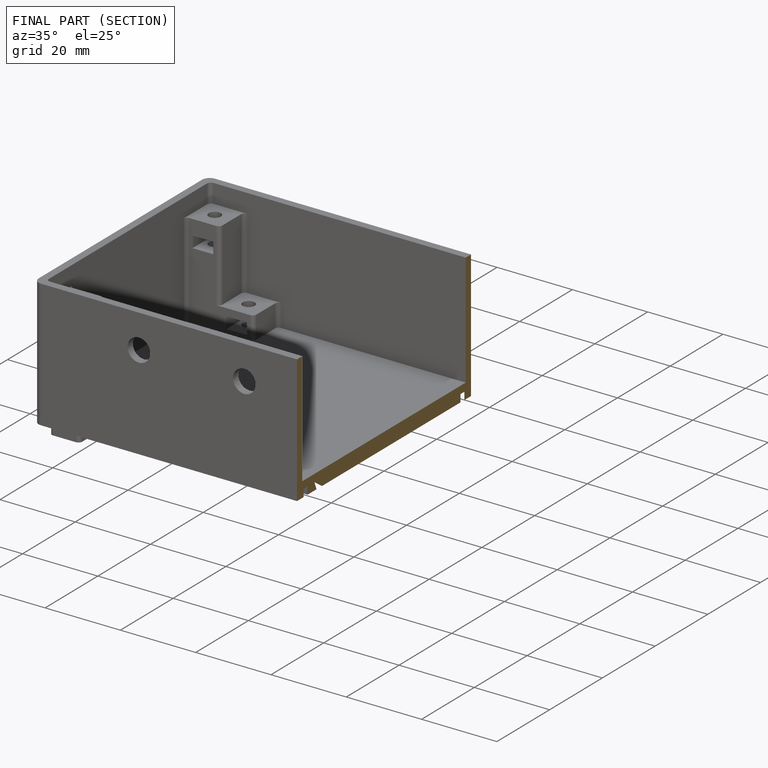
[diagram: finished part — half-section view (interior)]
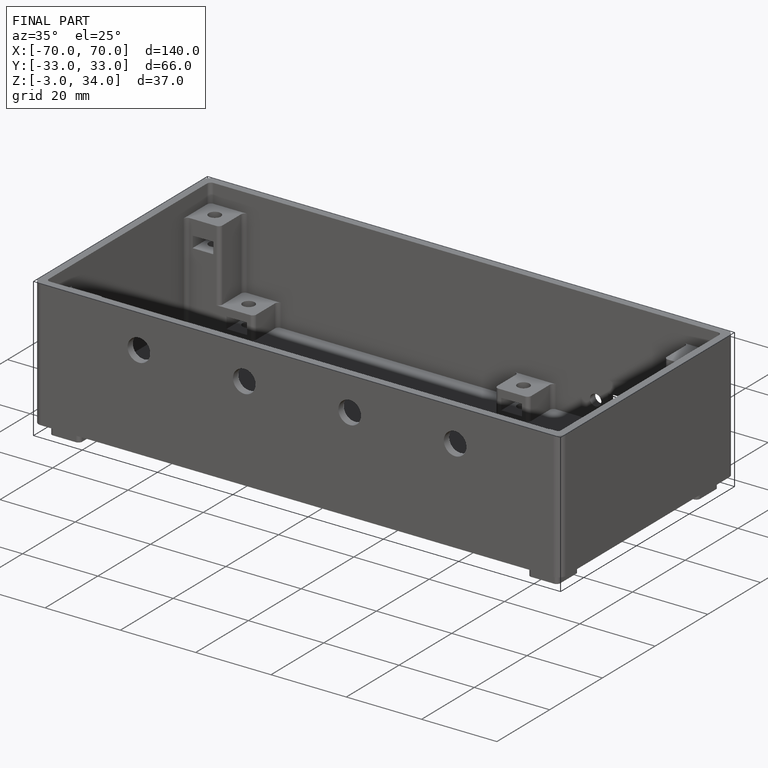
[diagram: finished part — iso view with bounding-box wireframe]
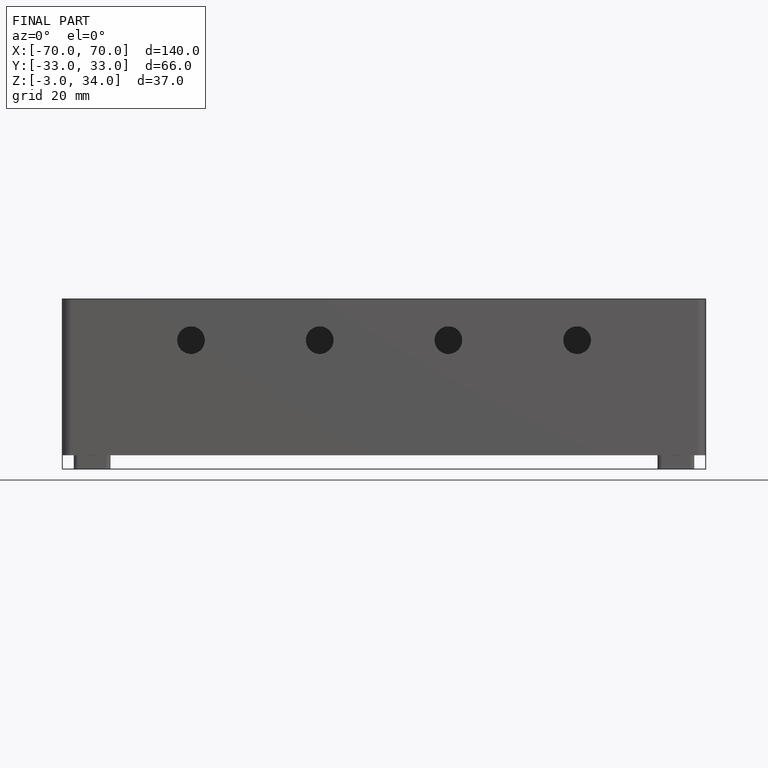
[diagram: finished part — front view with bounding-box wireframe]
